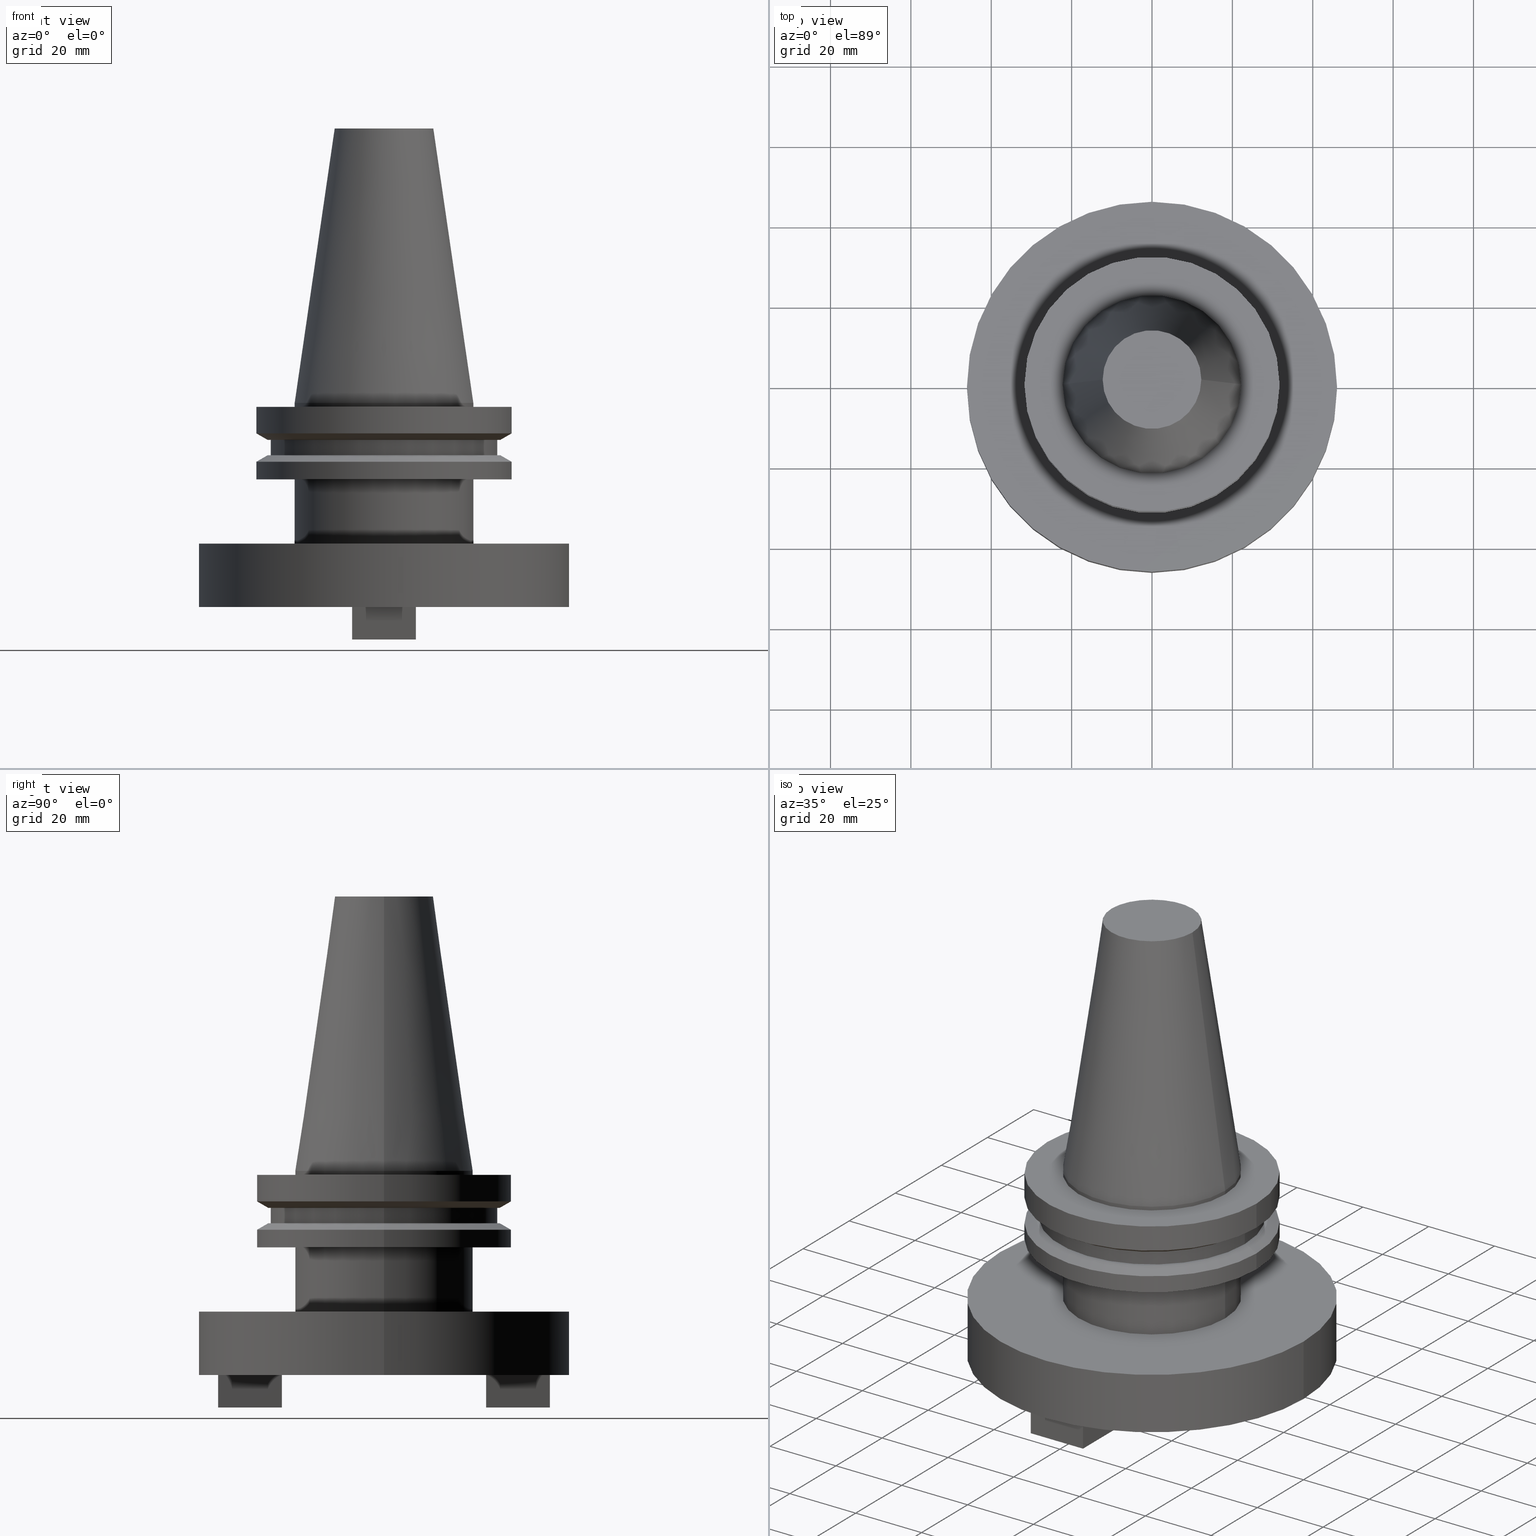
[diagram: canonical four-view strip — front | top / right | iso, engineering-drawing reading convention]
A machine part, canonical four-view strip (front | top / right | iso — engineering-drawing reading convention). The complete STEP part file that produces these views, byte-faithful:
ISO-10303-21;
HEADER;
FILE_DESCRIPTION (( 'STEP AP203' ),
    '1' );
FILE_NAME ('BCV40-SMC1_500-2.STEP',
    '2022-02-25T14:58:45',
    ( '' ),
    ( '' ),
    'SwSTEP 2.0',
    'SolidWorks 2021',
    '' );
FILE_SCHEMA (( 'CONFIG_CONTROL_DESIGN' ));
ENDSEC;

DATA;
#1 = CARTESIAN_POINT ( 'NONE',  ( 7.937499999999989342, -41.27750000000001052, -58.88000000000000256 ) ) ;
#2 = ORIENTED_EDGE ( 'NONE', *, *, #188, .T. ) ;
#3 = PLANE ( 'NONE',  #231 ) ;
#4 = VECTOR ( 'NONE', #994, 1000.000000000000000 ) ;
#5 = AXIS2_PLACEMENT_3D ( 'NONE', #965, #886, #563 ) ;
#6 = PLANE ( 'NONE',  #944 ) ;
#7 = VERTEX_POINT ( 'NONE', #62 ) ;
#8 = CIRCLE ( 'NONE', #23, 28.97919780457007732 ) ;
#9 = CARTESIAN_POINT ( 'NONE',  ( 28.17999999999999972, 0.000000000000000000, -13.05499999999999794 ) ) ;
#10 = EDGE_CURVE ( 'NONE', #1075, #718, #675, .T. ) ;
#11 = DIRECTION ( 'NONE',  ( -0.000000000000000000, -0.000000000000000000, 1.000000000000000000 ) ) ;
#12 = ORIENTED_EDGE ( 'NONE', *, *, #673, .T. ) ;
#13 = CARTESIAN_POINT ( 'NONE',  ( 0.000000000000000000, 0.000000000000000000, -35.04999999999999716 ) ) ;
#14 = DIRECTION ( 'NONE',  ( 1.000000000000000000, 0.000000000000000000, 0.000000000000000000 ) ) ;
#15 = VERTEX_POINT ( 'NONE', #758 ) ;
#16 = EDGE_CURVE ( 'NONE', #633, #242, #418, .T. ) ;
#17 = FACE_OUTER_BOUND ( 'NONE', #280, .T. ) ;
#18 = LINE ( 'NONE', #361, #853 ) ;
#19 = AXIS2_PLACEMENT_3D ( 'NONE', #406, #1006, #248 ) ;
#20 = LINE ( 'NONE', #475, #653 ) ;
#21 = ORIENTED_EDGE ( 'NONE', *, *, #1036, .F. ) ;
#22 = VECTOR ( 'NONE', #241, 1000.000000000000000 ) ;
#23 = AXIS2_PLACEMENT_3D ( 'NONE', #274, #1044, #293 ) ;
#24 = PLANE ( 'NONE',  #5 ) ;
#25 = ADVANCED_FACE ( 'NONE', ( #1052 ), #210, .T. ) ;
#26 = CARTESIAN_POINT ( 'NONE',  ( -7.937499999999996447, -25.40249999999999986, -58.88000000000000256 ) ) ;
#27 = EDGE_LOOP ( 'NONE', ( #504, #825 ) ) ;
#28 = ORIENTED_EDGE ( 'NONE', *, *, #10, .T. ) ;
#29 = CARTESIAN_POINT ( 'NONE',  ( -7.937499999999996447, 41.27749999999999631, -50.79999999999999716 ) ) ;
#30 = DIRECTION ( 'NONE',  ( 1.000000000000000000, 0.000000000000000000, 0.000000000000000000 ) ) ;
#31 = CARTESIAN_POINT ( 'NONE',  ( 0.000000000000000000, 0.000000000000000000, 0.000000000000000000 ) ) ;
#32 = ORIENTED_EDGE ( 'NONE', *, *, #390, .F. ) ;
#33 = ORIENTED_EDGE ( 'NONE', *, *, #411, .T. ) ;
#34 = CARTESIAN_POINT ( 'NONE',  ( 0.000000000000000000, 31.75000000000000000, -0.9999999999999995559 ) ) ;
#35 = CARTESIAN_POINT ( 'NONE',  ( 7.937500000000003553, 41.27749999999999631, -50.79999999999999716 ) ) ;
#36 = EDGE_CURVE ( 'NONE', #117, #510, #785, .T. ) ;
#37 = CARTESIAN_POINT ( 'NONE',  ( 0.000000000000000000, 0.000000000000000000, -19.04999999999999716 ) ) ;
#38 = VECTOR ( 'NONE', #890, 999.9999999999998863 ) ;
#39 = VERTEX_POINT ( 'NONE', #920 ) ;
#40 = VECTOR ( 'NONE', #408, 1000.000000000000000 ) ;
#41 = CYLINDRICAL_SURFACE ( 'NONE', #283, 22.22500000000000142 ) ;
#42 = CARTESIAN_POINT ( 'NONE',  ( 7.937500000000003553, 25.40249999999999986, -58.88000000000000256 ) ) ;
#43 = DIRECTION ( 'NONE',  ( 1.000000000000000000, 0.000000000000000000, 0.000000000000000000 ) ) ;
#44 = CC_DESIGN_DATE_AND_TIME_ASSIGNMENT ( #407, #569, ( #909 ) ) ;
#45 = FACE_OUTER_BOUND ( 'NONE', #1060, .T. ) ;
#46 = ORIENTED_EDGE ( 'NONE', *, *, #66, .F. ) ;
#47 = CARTESIAN_POINT ( 'NONE',  ( 0.000000000000000000, 0.000000000000000000, -1.000000000000000888 ) ) ;
#48 = DIRECTION ( 'NONE',  ( -0.000000000000000000, -0.000000000000000000, 1.000000000000000000 ) ) ;
#49 = EDGE_LOOP ( 'NONE', ( #180, #446, #369, #769 ) ) ;
#50 = CARTESIAN_POINT ( 'NONE',  ( -7.937499999999996447, -25.40249999999999986, -58.88000000000000256 ) ) ;
#51 = LINE ( 'NONE', #635, #854 ) ;
#52 = CARTESIAN_POINT ( 'NONE',  ( 0.000000000000000000, 0.000000000000000000, -58.88000000000000256 ) ) ;
#53 = EDGE_LOOP ( 'NONE', ( #261, #746, #1071, #331 ) ) ;
#54 = EDGE_CURVE ( 'NONE', #985, #870, #834, .T. ) ;
#55 = CIRCLE ( 'NONE', #72, 46.04999999999999716 ) ;
#56 = DIRECTION ( 'NONE',  ( -1.000000000000000000, 0.000000000000000000, 0.000000000000000000 ) ) ;
#57 = EDGE_CURVE ( 'NONE', #481, #741, #508, .T. ) ;
#58 = PERSON_AND_ORGANIZATION_ROLE ( 'design_supplier' ) ;
#59 = LINE ( 'NONE', #1000, #22 ) ;
#60 = VERTEX_POINT ( 'NONE', #1003 ) ;
#61 = FACE_OUTER_BOUND ( 'NONE', #324, .T. ) ;
#62 = CARTESIAN_POINT ( 'NONE',  ( -46.04999999999999716, 5.639498510073560988E-15, -35.04999999999999716 ) ) ;
#63 = EDGE_LOOP ( 'NONE', ( #33, #1066, #468, #698 ) ) ;
#64 = CARTESIAN_POINT ( 'NONE',  ( 7.937500000000003553, 41.27749999999999631, -50.79999999999999716 ) ) ;
#65 = DIRECTION ( 'NONE',  ( -0.000000000000000000, -0.000000000000000000, 1.000000000000000000 ) ) ;
#66 = EDGE_CURVE ( 'NONE', #850, #199, #574, .T. ) ;
#67 = FACE_OUTER_BOUND ( 'NONE', #79, .T. ) ;
#68 = ORIENTED_EDGE ( 'NONE', *, *, #256, .F. ) ;
#69 = ADVANCED_FACE ( 'NONE', ( #315 ), #506, .T. ) ;
#70 = VECTOR ( 'NONE', #585, 1000.000000000000000 ) ;
#71 = FACE_OUTER_BOUND ( 'NONE', #702, .T. ) ;
#72 = AXIS2_PLACEMENT_3D ( 'NONE', #127, #813, #478 ) ;
#73 = LINE ( 'NONE', #562, #86 ) ;
#74 = CARTESIAN_POINT ( 'NONE',  ( 7.937500000000003553, 25.40249999999999986, -50.79999999999999716 ) ) ;
#75 = ORIENTED_EDGE ( 'NONE', *, *, #16, .T. ) ;
#76 = LINE ( 'NONE', #663, #282 ) ;
#77 = EDGE_LOOP ( 'NONE', ( #270, #643, #1001, #154 ) ) ;
#78 = FACE_OUTER_BOUND ( 'NONE', #123, .T. ) ;
#79 = EDGE_LOOP ( 'NONE', ( #189, #129, #1047, #670 ) ) ;
#80 = EDGE_CURVE ( 'NONE', #60, #39, #830, .T. ) ;
#81 = DIRECTION ( 'NONE',  ( 1.000000000000000000, 0.000000000000000000, 0.000000000000000000 ) ) ;
#82 = CARTESIAN_POINT ( 'NONE',  ( 0.000000000000000000, 0.000000000000000000, 68.25000000000000000 ) ) ;
#83 = PRODUCT ( 'BCV40-SMC1_500-2', 'BCV40-SMC1_500-2', '', ( #949 ) ) ;
#84 = CARTESIAN_POINT ( 'NONE',  ( -8.729999999999998650, 1.069116655655639177E-15, 0.000000000000000000 ) ) ;
#85 = EDGE_LOOP ( 'NONE', ( #450, #680 ) ) ;
#86 = VECTOR ( 'NONE', #591, 1000.000000000000000 ) ;
#87 = DIRECTION ( 'NONE',  ( -1.000000000000000000, 0.000000000000000000, 0.000000000000000000 ) ) ;
#88 = EDGE_CURVE ( 'NONE', #525, #199, #763, .T. ) ;
#89 = CIRCLE ( 'NONE', #686, 28.97919780457008088 ) ;
#90 = EDGE_CURVE ( 'NONE', #622, #376, #678, .T. ) ;
#91 = AXIS2_PLACEMENT_3D ( 'NONE', #692, #529, #838 ) ;
#92 = DIRECTION ( 'NONE',  ( 0.000000000000000000, -0.000000000000000000, 1.000000000000000000 ) ) ;
#93 = ORIENTED_EDGE ( 'NONE', *, *, #277, .T. ) ;
#94 = CARTESIAN_POINT ( 'NONE',  ( 0.000000000000000000, 0.000000000000000000, -13.05499999999999794 ) ) ;
#95 = CARTESIAN_POINT ( 'NONE',  ( 31.75000000000000000, 0.000000000000000000, 68.25000000000000000 ) ) ;
#96 = DIRECTION ( 'NONE',  ( 1.000000000000000000, 0.000000000000000000, 0.000000000000000000 ) ) ;
#97 = ORIENTED_EDGE ( 'NONE', *, *, #88, .T. ) ;
#98 = LINE ( 'NONE', #26, #927 ) ;
#99 = CARTESIAN_POINT ( 'NONE',  ( 7.937499999999989342, -25.40249999999999986, -50.79999999999999716 ) ) ;
#100 = PLANE ( 'NONE',  #476 ) ;
#101 = EDGE_CURVE ( 'NONE', #15, #974, #73, .T. ) ;
#102 = EDGE_LOOP ( 'NONE', ( #1012, #251, #535, #617 ) ) ;
#103 = ORIENTED_EDGE ( 'NONE', *, *, #1038, .F. ) ;
#104 = DIRECTION ( 'NONE',  ( -0.000000000000000000, -0.000000000000000000, 1.000000000000000000 ) ) ;
#105 = DIRECTION ( 'NONE',  ( 1.000000000000000000, 0.000000000000000000, 0.000000000000000000 ) ) ;
#106 = ORIENTED_EDGE ( 'NONE', *, *, #182, .F. ) ;
#107 = VECTOR ( 'NONE', #623, 1000.000000000000000 ) ;
#108 = ORIENTED_EDGE ( 'NONE', *, *, #796, .F. ) ;
#109 = APPROVAL_PERSON_ORGANIZATION ( #908, #1054, #309 ) ;
#110 = ORIENTED_EDGE ( 'NONE', *, *, #852, .T. ) ;
#111 = DIRECTION ( 'NONE',  ( 0.000000000000000000, 0.000000000000000000, -1.000000000000000000 ) ) ;
#112 = DIRECTION ( 'NONE',  ( -0.000000000000000000, -0.000000000000000000, 1.000000000000000000 ) ) ;
#113 = ORIENTED_EDGE ( 'NONE', *, *, #392, .T. ) ;
#114 = ORIENTED_EDGE ( 'NONE', *, *, #399, .T. ) ;
#115 = DIRECTION ( 'NONE',  ( 1.000000000000000000, 0.000000000000000000, 0.000000000000000000 ) ) ;
#116 = FACE_BOUND ( 'NONE', #639, .T. ) ;
#117 = VERTEX_POINT ( 'NONE', #926 ) ;
#118 = ORIENTED_EDGE ( 'NONE', *, *, #651, .F. ) ;
#119 = LINE ( 'NONE', #1055, #382 ) ;
#120 = ADVANCED_FACE ( 'NONE', ( #581 ), #502, .T. ) ;
#121 = EDGE_CURVE ( 'NONE', #229, #1046, #401, .T. ) ;
#122 = LINE ( 'NONE', #807, #891 ) ;
#123 = EDGE_LOOP ( 'NONE', ( #981, #368, #397, #532 ) ) ;
#124 = VERTEX_POINT ( 'NONE', #713 ) ;
#125 = ORIENTED_EDGE ( 'NONE', *, *, #495, .T. ) ;
#126 = AXIS2_PLACEMENT_3D ( 'NONE', #733, #147, #755 ) ;
#127 = CARTESIAN_POINT ( 'NONE',  ( 0.000000000000000000, 0.000000000000000000, -35.04999999999999716 ) ) ;
#128 = CARTESIAN_POINT ( 'NONE',  ( 7.937499999999989342, -25.40249999999999986, -58.88000000000000256 ) ) ;
#129 = ORIENTED_EDGE ( 'NONE', *, *, #656, .F. ) ;
#130 = ORIENTED_EDGE ( 'NONE', *, *, #724, .T. ) ;
#131 = PLANE ( 'NONE',  #874 ) ;
#132 = DIRECTION ( 'NONE',  ( 1.000000000000000000, 0.000000000000000000, 0.000000000000000000 ) ) ;
#133 = APPROVAL_STATUS ( 'not_yet_approved' ) ;
#134 = ADVANCED_FACE ( 'NONE', ( #346 ), #338, .T. ) ;
#135 = CARTESIAN_POINT ( 'NONE',  ( -28.17999999999999972, 3.451054679997241634E-15, -9.204999999999991189 ) ) ;
#136 = ORIENTED_EDGE ( 'NONE', *, *, #233, .F. ) ;
#137 = FACE_OUTER_BOUND ( 'NONE', #63, .T. ) ;
#138 = APPROVAL_ROLE ( '' ) ;
#139 = VECTOR ( 'NONE', #240, 1000.000000000000000 ) ;
#140 = CARTESIAN_POINT ( 'NONE',  ( 22.22500000000000142, 2.721777511104992849E-15, 0.000000000000000000 ) ) ;
#141 = EDGE_LOOP ( 'NONE', ( #344, #318, #275, #1040 ) ) ;
#142 = AXIS2_PLACEMENT_3D ( 'NONE', #580, #681, #833 ) ;
#143 = VECTOR ( 'NONE', #1013, 1000.000000000000000 ) ;
#144 = APPLICATION_CONTEXT ( 'configuration controlled 3d designs of mechanical parts and assemblies' ) ;
#145 = CYLINDRICAL_SURFACE ( 'NONE', #19, 8.729999999999998650 ) ;
#146 = PERSON_AND_ORGANIZATION ( #329, #598 ) ;
#147 = DIRECTION ( 'NONE',  ( -1.000000000000000000, 0.000000000000000000, -0.000000000000000000 ) ) ;
#148 = ORIENTED_EDGE ( 'NONE', *, *, #460, .T. ) ;
#149 = DIRECTION ( 'NONE',  ( -0.000000000000000000, -0.000000000000000000, 1.000000000000000000 ) ) ;
#150 = EDGE_CURVE ( 'NONE', #887, #7, #938, .T. ) ;
#151 = DIRECTION ( 'NONE',  ( -0.000000000000000000, -0.000000000000000000, 1.000000000000000000 ) ) ;
#152 = DATE_TIME_ROLE ( 'creation_date' ) ;
#153 = PLANE ( 'NONE',  #126 ) ;
#154 = ORIENTED_EDGE ( 'NONE', *, *, #348, .T. ) ;
#155 = DIRECTION ( 'NONE',  ( 1.000000000000000000, 0.000000000000000000, 0.000000000000000000 ) ) ;
#156 = CC_DESIGN_PERSON_AND_ORGANIZATION_ASSIGNMENT ( #820, #1058, ( #688 ) ) ;
#157 = CARTESIAN_POINT ( 'NONE',  ( 0.000000000000000000, 0.000000000000000000, -1.000000000000000888 ) ) ;
#158 = ORIENTED_EDGE ( 'NONE', *, *, #390, .T. ) ;
#159 = VECTOR ( 'NONE', #860, 1000.000000000000000 ) ;
#160 = AXIS2_PLACEMENT_3D ( 'NONE', #489, #817, #991 ) ;
#161 = DIRECTION ( 'NONE',  ( -0.000000000000000000, -0.000000000000000000, 1.000000000000000000 ) ) ;
#162 = AXIS2_PLACEMENT_3D ( 'NONE', #464, #377, #884 ) ;
#163 = LOCAL_TIME ( 8, 58, 45.00000000000000000, #642 ) ;
#164 = CARTESIAN_POINT ( 'NONE',  ( 0.000000000000000000, 0.000000000000000000, 68.25000000000000000 ) ) ;
#165 = MANIFOLD_SOLID_BREP ( 'SQ', #683 ) ;
#166 = PLANE ( 'NONE',  #722 ) ;
#167 = ORIENTED_EDGE ( 'NONE', *, *, #1015, .T. ) ;
#168 = LINE ( 'NONE', #788, #597 ) ;
#169 = CARTESIAN_POINT ( 'NONE',  ( 0.000000000000000000, 0.000000000000000000, -1.000000000000000888 ) ) ;
#170 = FACE_BOUND ( 'NONE', #102, .T. ) ;
#171 = EDGE_LOOP ( 'NONE', ( #606, #187, #279, #1024 ) ) ;
#172 = EDGE_CURVE ( 'NONE', #1034, #1046, #273, .T. ) ;
#173 = CARTESIAN_POINT ( 'NONE',  ( 0.000000000000000000, 0.000000000000000000, -50.79999999999999716 ) ) ;
#174 = LINE ( 'NONE', #269, #438 ) ;
#175 = VERTEX_POINT ( 'NONE', #777 ) ;
#176 = CC_DESIGN_DATE_AND_TIME_ASSIGNMENT ( #486, #152, ( #829 ) ) ;
#177 = VECTOR ( 'NONE', #473, 1000.000000000000000 ) ;
#178 = DIRECTION ( 'NONE',  ( 1.000000000000000000, 0.000000000000000000, 0.000000000000000000 ) ) ;
#179 = FACE_OUTER_BOUND ( 'NONE', #567, .T. ) ;
#180 = ORIENTED_EDGE ( 'NONE', *, *, #912, .F. ) ;
#181 = DIRECTION ( 'NONE',  ( 1.000000000000000000, 0.000000000000000000, 0.000000000000000000 ) ) ;
#182 = EDGE_CURVE ( 'NONE', #966, #835, #864, .T. ) ;
#183 = VERTEX_POINT ( 'NONE', #782 ) ;
#184 = PLANE ( 'NONE',  #1025 ) ;
#185 = CARTESIAN_POINT ( 'NONE',  ( 0.000000000000000000, 0.000000000000000000, -35.04999999999999716 ) ) ;
#186 = CARTESIAN_POINT ( 'NONE',  ( 0.000000000000000000, 0.000000000000000000, -7.605276606597335842 ) ) ;
#187 = ORIENTED_EDGE ( 'NONE', *, *, #631, .T. ) ;
#188 = EDGE_CURVE ( 'NONE', #117, #1079, #18, .T. ) ;
#189 = ORIENTED_EDGE ( 'NONE', *, *, #587, .F. ) ;
#190 = CARTESIAN_POINT ( 'NONE',  ( 0.000000000000000000, 0.000000000000000000, -13.05499999999999794 ) ) ;
#191 = CONICAL_SURFACE ( 'NONE', #576, 31.75000000000000000, 1.047197551196597853 ) ;
#192 = DIRECTION ( 'NONE',  ( -0.000000000000000000, -0.000000000000000000, 1.000000000000000000 ) ) ;
#193 = CIRCLE ( 'NONE', #955, 31.75000000000000000 ) ;
#194 = EDGE_CURVE ( 'NONE', #7, #972, #925, .T. ) ;
#195 = ORIENTED_EDGE ( 'NONE', *, *, #1032, .F. ) ;
#196 = EDGE_CURVE ( 'NONE', #458, #39, #719, .T. ) ;
#197 = DIRECTION ( 'NONE',  ( -0.000000000000000000, -0.000000000000000000, 1.000000000000000000 ) ) ;
#198 = ORIENTED_EDGE ( 'NONE', *, *, #440, .T. ) ;
#199 = VERTEX_POINT ( 'NONE', #221 ) ;
#200 = EDGE_CURVE ( 'NONE', #633, #15, #814, .T. ) ;
#201 = CARTESIAN_POINT ( 'NONE',  ( 0.000000000000000000, 0.000000000000000000, -35.04999999999999716 ) ) ;
#202 = CARTESIAN_POINT ( 'NONE',  ( 0.000000000000000000, 0.000000000000000000, -19.04999999999999716 ) ) ;
#203 = DIRECTION ( 'NONE',  ( 1.000000000000000000, 0.000000000000000000, 0.000000000000000000 ) ) ;
#204 = ORIENTED_EDGE ( 'NONE', *, *, #230, .F. ) ;
#205 = ORIENTED_EDGE ( 'NONE', *, *, #357, .T. ) ;
#206 = ORIENTED_EDGE ( 'NONE', *, *, #264, .F. ) ;
#207 = DIRECTION ( 'NONE',  ( -0.000000000000000000, 1.000000000000000000, -0.000000000000000000 ) ) ;
#208 = ADVANCED_FACE ( 'NONE', ( #795 ), #218, .F. ) ;
#209 = APPROVAL_DATE_TIME ( #490, #272 ) ;
#210 = CONICAL_SURFACE ( 'NONE', #626, 22.22500000000000142, 0.1448138465474119174 ) ;
#211 = EDGE_LOOP ( 'NONE', ( #903, #258, #822, #425 ) ) ;
#212 = VECTOR ( 'NONE', #496, 1000.000000000000000 ) ;
#213 = CARTESIAN_POINT ( 'NONE',  ( -7.937499999999996447, 41.27749999999999631, -58.88000000000000256 ) ) ;
#214 = EDGE_LOOP ( 'NONE', ( #415, #1051, #1009, #638 ) ) ;
#215 = CIRCLE ( 'NONE', #162, 22.22500000000000142 ) ;
#216 = AXIS2_PLACEMENT_3D ( 'NONE', #710, #728, #723 ) ;
#217 = CARTESIAN_POINT ( 'NONE',  ( 0.000000000000000000, 31.74999999999999289, -19.04999999999999716 ) ) ;
#218 = PLANE ( 'NONE',  #378 ) ;
#219 = ADVANCED_FACE ( 'NONE', ( #800 ), #880, .T. ) ;
#220 = ORIENTED_EDGE ( 'NONE', *, *, #460, .F. ) ;
#221 = CARTESIAN_POINT ( 'NONE',  ( 28.17999999999999972, 0.000000000000000000, -9.204999999999991189 ) ) ;
#222 = PRODUCT_RELATED_PRODUCT_CATEGORY ( 'detail', '', ( #83 ) ) ;
#223 = DIRECTION ( 'NONE',  ( -0.8660254037844387076, 0.000000000000000000, -0.4999999999999998890 ) ) ;
#224 = ORIENTED_EDGE ( 'NONE', *, *, #892, .T. ) ;
#225 = DIRECTION ( 'NONE',  ( 1.000000000000000000, 0.000000000000000000, 0.000000000000000000 ) ) ;
#226 = PERSON_AND_ORGANIZATION_ROLE ( 'classification_officer' ) ;
#227 = AXIS2_PLACEMENT_3D ( 'NONE', #429, #151, #586 ) ;
#228 = CARTESIAN_POINT ( 'NONE',  ( 7.937499999999989342, -25.40249999999999986, -58.88000000000000256 ) ) ;
#229 = VERTEX_POINT ( 'NONE', #806 ) ;
#230 = EDGE_CURVE ( 'NONE', #1089, #124, #556, .T. ) ;
#231 = AXIS2_PLACEMENT_3D ( 'NONE', #217, #371, #961 ) ;
#232 = DIRECTION ( 'NONE',  ( 0.000000000000000000, 1.000000000000000000, 0.000000000000000000 ) ) ;
#233 = EDGE_CURVE ( 'NONE', #15, #622, #479, .T. ) ;
#234 = DIRECTION ( 'NONE',  ( -0.000000000000000000, -0.000000000000000000, 1.000000000000000000 ) ) ;
#235 = DIRECTION ( 'NONE',  ( -0.000000000000000000, 1.000000000000000000, -0.000000000000000000 ) ) ;
#236 = CALENDAR_DATE ( 2022, 25, 2 ) ;
#237 = ORIENTED_EDGE ( 'NONE', *, *, #522, .T. ) ;
#238 = EDGE_CURVE ( 'NONE', #39, #458, #803, .T. ) ;
#239 = LINE ( 'NONE', #1088, #557 ) ;
#240 = DIRECTION ( 'NONE',  ( 0.8660254037844389297, 0.000000000000000000, 0.4999999999999995004 ) ) ;
#241 = DIRECTION ( 'NONE',  ( 0.000000000000000000, -1.000000000000000000, 0.000000000000000000 ) ) ;
#242 = VERTEX_POINT ( 'NONE', #35 ) ;
#243 = FACE_OUTER_BOUND ( 'NONE', #141, .T. ) ;
#244 = DIRECTION ( 'NONE',  ( 1.000000000000000000, 0.000000000000000000, 0.000000000000000000 ) ) ;
#245 = CARTESIAN_POINT ( 'NONE',  ( -7.937499999999996447, -25.40250000000000696, -50.79999999999999716 ) ) ;
#246 = EDGE_LOOP ( 'NONE', ( #326, #167 ) ) ;
#247 = CIRCLE ( 'NONE', #873, 8.729999999999998650 ) ;
#248 = DIRECTION ( 'NONE',  ( 1.000000000000000000, 0.000000000000000000, 0.000000000000000000 ) ) ;
#249 = VECTOR ( 'NONE', #548, 1000.000000000000000 ) ;
#250 = AXIS2_PLACEMENT_3D ( 'NONE', #697, #1018, #14 ) ;
#251 = ORIENTED_EDGE ( 'NONE', *, *, #852, .F. ) ;
#252 = ADVANCED_FACE ( 'NONE', ( #979 ), #461, .T. ) ;
#253 = PLANE ( 'NONE',  #474 ) ;
#254 = ORIENTED_EDGE ( 'NONE', *, *, #866, .T. ) ;
#255 = DIRECTION ( 'NONE',  ( -0.000000000000000000, -0.000000000000000000, 1.000000000000000000 ) ) ;
#256 = EDGE_CURVE ( 'NONE', #1089, #730, #360, .T. ) ;
#257 = LINE ( 'NONE', #424, #668 ) ;
#258 = ORIENTED_EDGE ( 'NONE', *, *, #1032, .T. ) ;
#259 = CYLINDRICAL_SURFACE ( 'NONE', #720, 46.04999999999999716 ) ;
#260 = FACE_OUTER_BOUND ( 'NONE', #1081, .T. ) ;
#261 = ORIENTED_EDGE ( 'NONE', *, *, #150, .F. ) ;
#262 = EDGE_CURVE ( 'NONE', #894, #741, #51, .T. ) ;
#263 = CARTESIAN_POINT ( 'NONE',  ( 0.000000000000000000, 0.000000000000000000, 0.000000000000000000 ) ) ;
#264 = EDGE_CURVE ( 'NONE', #1034, #521, #975, .T. ) ;
#265 = AXIS2_PLACEMENT_3D ( 'NONE', #485, #717, #30 ) ;
#266 = CARTESIAN_POINT ( 'NONE',  ( 0.000000000000000000, 0.000000000000000000, -14.65472339340266572 ) ) ;
#267 = VECTOR ( 'NONE', #498, 1000.000000000000000 ) ;
#268 = CIRCLE ( 'NONE', #384, 22.22500000000000142 ) ;
#269 = CARTESIAN_POINT ( 'NONE',  ( 31.75000000000000000, 0.000000000000000000, 68.25000000000000000 ) ) ;
#270 = ORIENTED_EDGE ( 'NONE', *, *, #534, .T. ) ;
#271 = LINE ( 'NONE', #614, #143 ) ;
#272 = APPROVAL ( #655, 'UNSPECIFIED' ) ;
#273 = LINE ( 'NONE', #95, #300 ) ;
#274 = CARTESIAN_POINT ( 'NONE',  ( 0.000000000000000000, 0.000000000000000000, -9.205000000000005400 ) ) ;
#275 = ORIENTED_EDGE ( 'NONE', *, *, #1045, .F. ) ;
#276 = CARTESIAN_POINT ( 'NONE',  ( -31.74999999999999289, 3.888253587292845687E-15, -19.04999999999999716 ) ) ;
#277 = EDGE_CURVE ( 'NONE', #865, #1030, #513, .T. ) ;
#278 = LINE ( 'NONE', #552, #286 ) ;
#279 = ORIENTED_EDGE ( 'NONE', *, *, #620, .F. ) ;
#280 = EDGE_LOOP ( 'NONE', ( #832, #685, #480, #391 ) ) ;
#281 = DIRECTION ( 'NONE',  ( -0.000000000000000000, -0.000000000000000000, 1.000000000000000000 ) ) ;
#282 = VECTOR ( 'NONE', #828, 1000.000000000000000 ) ;
#283 = AXIS2_PLACEMENT_3D ( 'NONE', #976, #398, #1048 ) ;
#284 = ADVANCED_FACE ( 'NONE', ( #61 ), #145, .F. ) ;
#285 = VECTOR ( 'NONE', #223, 1000.000000000000000 ) ;
#286 = VECTOR ( 'NONE', #624, 1000.000000000000000 ) ;
#287 = ADVANCED_FACE ( 'NONE', ( #590 ), #422, .F. ) ;
#288 = ORIENTED_EDGE ( 'NONE', *, *, #796, .T. ) ;
#289 = CARTESIAN_POINT ( 'NONE',  ( -31.75000000000000000, 3.888253587292846476E-15, 68.25000000000000000 ) ) ;
#290 = DIRECTION ( 'NONE',  ( -0.000000000000000000, -0.000000000000000000, 1.000000000000000000 ) ) ;
#291 = VERTEX_POINT ( 'NONE', #919 ) ;
#292 = DIRECTION ( 'NONE',  ( -1.000000000000000000, 0.000000000000000000, -0.000000000000000000 ) ) ;
#293 = DIRECTION ( 'NONE',  ( 1.000000000000000000, 0.000000000000000000, 0.000000000000000000 ) ) ;
#294 = DIRECTION ( 'NONE',  ( -0.000000000000000000, -0.000000000000000000, 1.000000000000000000 ) ) ;
#295 = EDGE_LOOP ( 'NONE', ( #885, #355 ) ) ;
#296 = FACE_OUTER_BOUND ( 'NONE', #77, .T. ) ;
#297 = EDGE_CURVE ( 'NONE', #741, #481, #905, .T. ) ;
#298 = DIRECTION ( 'NONE',  ( 1.000000000000000000, 0.000000000000000000, 0.000000000000000000 ) ) ;
#299 = COORDINATED_UNIVERSAL_TIME_OFFSET ( 6, 0, .BEHIND. ) ;
#300 = VECTOR ( 'NONE', #444, 1000.000000000000000 ) ;
#301 = AXIS2_PLACEMENT_3D ( 'NONE', #13, #533, #689 ) ;
#302 = FACE_OUTER_BOUND ( 'NONE', #420, .T. ) ;
#303 = AXIS2_PLACEMENT_3D ( 'NONE', #516, #520, #843 ) ;
#304 = FACE_OUTER_BOUND ( 'NONE', #349, .T. ) ;
#305 = ADVANCED_FACE ( 'NONE', ( #71 ), #332, .T. ) ;
#306 = LINE ( 'NONE', #396, #40 ) ;
#307 = EDGE_LOOP ( 'NONE', ( #433, #939, #572, #693 ) ) ;
#308 = DIRECTION ( 'NONE',  ( 0.8660254037844387076, 1.060575238724906915E-16, -0.4999999999999998890 ) ) ;
#309 = APPROVAL_ROLE ( '' ) ;
#310 = EDGE_CURVE ( 'NONE', #60, #637, #786, .T. ) ;
#311 = CARTESIAN_POINT ( 'NONE',  ( 0.000000000000000000, 0.000000000000000000, 68.25000000000000000 ) ) ;
#312 = ORIENTED_EDGE ( 'NONE', *, *, #1082, .F. ) ;
#313 = PLANE ( 'NONE',  #907 ) ;
#314 = CARTESIAN_POINT ( 'NONE',  ( 0.000000000000000000, 0.000000000000000000, -14.65472339340266572 ) ) ;
#315 = FACE_OUTER_BOUND ( 'NONE', #871, .T. ) ;
#316 = ADVANCED_FACE ( 'NONE', ( #137 ), #659, .T. ) ;
#317 = CARTESIAN_POINT ( 'NONE',  ( 7.937499999999989342, -41.27750000000001052, -58.88000000000000256 ) ) ;
#318 = ORIENTED_EDGE ( 'NONE', *, *, #1082, .T. ) ;
#319 = AXIS2_PLACEMENT_3D ( 'NONE', #1068, #161, #428 ) ;
#320 = ADVANCED_FACE ( 'NONE', ( #1077 ), #674, .T. ) ;
#321 = VECTOR ( 'NONE', #942, 1000.000000000000000 ) ;
#322 = CC_DESIGN_APPROVAL ( #272, ( #688 ) ) ;
#323 = CARTESIAN_POINT ( 'NONE',  ( 0.000000000000000000, 0.000000000000000000, 68.25000000000000000 ) ) ;
#324 = EDGE_LOOP ( 'NONE', ( #220, #537, #792, #960 ) ) ;
#325 = CARTESIAN_POINT ( 'NONE',  ( 7.937500000000003553, 25.40249999999999986, -50.79999999999999716 ) ) ;
#326 = ORIENTED_EDGE ( 'NONE', *, *, #256, .T. ) ;
#327 = CARTESIAN_POINT ( 'NONE',  ( 0.000000000000000000, 0.000000000000000000, 0.000000000000000000 ) ) ;
#328 = CARTESIAN_POINT ( 'NONE',  ( 28.17999999999999972, 0.000000000000000000, 68.25000000000000000 ) ) ;
#329 = PERSON ( 'UNSPECIFIED', 'UNSPECIFIED', 'UNSPECIFIED', ('UNSPECIFIED'), ('UNSPECIFIED'), ('UNSPECIFIED') ) ;
#330 = CARTESIAN_POINT ( 'NONE',  ( 0.000000000000000000, 28.97919780457007732, -9.204999999999996518 ) ) ;
#331 = ORIENTED_EDGE ( 'NONE', *, *, #194, .F. ) ;
#332 = CYLINDRICAL_SURFACE ( 'NONE', #649, 31.75000000000000000 ) ;
#333 = ADVANCED_FACE ( 'NONE', ( #1002 ), #191, .T. ) ;
#334 = ORIENTED_EDGE ( 'NONE', *, *, #691, .F. ) ;
#335 = ADVANCED_FACE ( 'NONE', ( #243 ), #742, .T. ) ;
#336 = DIRECTION ( 'NONE',  ( 1.000000000000000000, 0.000000000000000000, 0.000000000000000000 ) ) ;
#337 = EDGE_LOOP ( 'NONE', ( #206, #935 ) ) ;
#338 = CONICAL_SURFACE ( 'NONE', #611, 31.75000000000000000, 1.047197551196597853 ) ;
#339 = VECTOR ( 'NONE', #452, 1000.000000000000000 ) ;
#340 = DIRECTION ( 'NONE',  ( -0.000000000000000000, -0.000000000000000000, 1.000000000000000000 ) ) ;
#341 = CIRCLE ( 'NONE', #889, 28.97919780457008088 ) ;
#342 = VECTOR ( 'NONE', #192, 1000.000000000000000 ) ;
#343 = LINE ( 'NONE', #84, #321 ) ;
#344 = ORIENTED_EDGE ( 'NONE', *, *, #36, .T. ) ;
#345 = DIRECTION ( 'NONE',  ( 1.000000000000000000, 0.000000000000000000, 0.000000000000000000 ) ) ;
#346 = FACE_OUTER_BOUND ( 'NONE', #811, .T. ) ;
#347 = CARTESIAN_POINT ( 'NONE',  ( -7.937499999999996447, -25.40249999999999986, -58.88000000000000256 ) ) ;
#348 = EDGE_CURVE ( 'NONE', #376, #589, #417, .T. ) ;
#349 = EDGE_LOOP ( 'NONE', ( #205, #364, #756, #75 ) ) ;
#350 = EDGE_CURVE ( 'NONE', #637, #458, #76, .T. ) ;
#351 = APPLICATION_CONTEXT ( 'configuration controlled 3d designs of mechanical parts and assemblies' ) ;
#352 = DIRECTION ( 'NONE',  ( 1.000000000000000000, -0.000000000000000000, -0.000000000000000000 ) ) ;
#353 = PRODUCT_DEFINITION_SHAPE ( 'NONE', 'NONE',  #829 ) ;
#354 = FACE_BOUND ( 'NONE', #547, .T. ) ;
#355 = ORIENTED_EDGE ( 'NONE', *, *, #654, .F. ) ;
#356 = EDGE_CURVE ( 'NONE', #375, #1046, #239, .T. ) ;
#357 = EDGE_CURVE ( 'NONE', #242, #974, #573, .T. ) ;
#358 = AXIS2_PLACEMENT_3D ( 'NONE', #157, #748, #244 ) ;
#359 = DIRECTION ( 'NONE',  ( -0.000000000000000000, -0.000000000000000000, 1.000000000000000000 ) ) ;
#360 = CIRCLE ( 'NONE', #767, 12.27178102086201150 ) ;
#361 = CARTESIAN_POINT ( 'NONE',  ( 22.22500000000000142, 0.000000000000000000, 68.25000000000000000 ) ) ;
#362 = AXIS2_PLACEMENT_3D ( 'NONE', #487, #831, #910 ) ;
#363 = CARTESIAN_POINT ( 'NONE',  ( 31.74999999999999289, 0.000000000000000000, -19.04999999999999716 ) ) ;
#364 = ORIENTED_EDGE ( 'NONE', *, *, #101, .F. ) ;
#365 = CARTESIAN_POINT ( 'NONE',  ( 0.000000000000000000, 0.000000000000000000, 0.000000000000000000 ) ) ;
#366 = DIRECTION ( 'NONE',  ( -0.000000000000000000, -0.000000000000000000, 1.000000000000000000 ) ) ;
#367 = APPLICATION_PROTOCOL_DEFINITION ( 'international standard', 'config_control_design', 1994, #144 ) ;
#368 = ORIENTED_EDGE ( 'NONE', *, *, #350, .T. ) ;
#369 = ORIENTED_EDGE ( 'NONE', *, *, #980, .T. ) ;
#370 = ORIENTED_EDGE ( 'NONE', *, *, #656, .T. ) ;
#371 = DIRECTION ( 'NONE',  ( 0.000000000000000000, -0.000000000000000000, 1.000000000000000000 ) ) ;
#372 = EDGE_CURVE ( 'NONE', #376, #633, #823, .T. ) ;
#373 = DESIGN_CONTEXT ( 'detailed design', #351, 'design' ) ;
#374 =( LENGTH_UNIT ( ) NAMED_UNIT ( * ) SI_UNIT ( .MILLI., .METRE. ) );
#375 = VERTEX_POINT ( 'NONE', #1073 ) ;
#376 = VERTEX_POINT ( 'NONE', #863 ) ;
#377 = DIRECTION ( 'NONE',  ( 0.000000000000000000, 0.000000000000000000, -1.000000000000000000 ) ) ;
#378 = AXIS2_PLACEMENT_3D ( 'NONE', #128, #544, #969 ) ;
#379 = DIRECTION ( 'NONE',  ( -0.000000000000000000, -0.000000000000000000, 1.000000000000000000 ) ) ;
#380 = AXIS2_PLACEMENT_3D ( 'NONE', #202, #149, #501 ) ;
#381 = EDGE_CURVE ( 'NONE', #389, #175, #511, .T. ) ;
#382 = VECTOR ( 'NONE', #897, 1000.000000000000000 ) ;
#383 = DIRECTION ( 'NONE',  ( 1.000000000000000000, 0.000000000000000000, 0.000000000000000000 ) ) ;
#384 = AXIS2_PLACEMENT_3D ( 'NONE', #31, #449, #203 ) ;
#385 = ORIENTED_EDGE ( 'NONE', *, *, #892, .F. ) ;
#386 = VERTEX_POINT ( 'NONE', #528 ) ;
#387 = PLANE ( 'NONE',  #687 ) ;
#388 = CARTESIAN_POINT ( 'NONE',  ( -12.27178102086201150, 0.000000000000000000, 68.25000000000000000 ) ) ;
#389 = VERTEX_POINT ( 'NONE', #781 ) ;
#390 = EDGE_CURVE ( 'NONE', #711, #966, #98, .T. ) ;
#391 = ORIENTED_EDGE ( 'NONE', *, *, #1038, .T. ) ;
#392 = EDGE_CURVE ( 'NONE', #124, #1079, #1022, .T. ) ;
#393 = DIRECTION ( 'NONE',  ( 0.000000000000000000, 0.000000000000000000, -1.000000000000000000 ) ) ;
#394 = DIRECTION ( 'NONE',  ( -0.000000000000000000, -0.000000000000000000, 1.000000000000000000 ) ) ;
#395 = PERSON_AND_ORGANIZATION ( #329, #598 ) ;
#396 = CARTESIAN_POINT ( 'NONE',  ( -31.75000000000000000, 3.888253587292846476E-15, 68.25000000000000000 ) ) ;
#397 = ORIENTED_EDGE ( 'NONE', *, *, #238, .F. ) ;
#398 = DIRECTION ( 'NONE',  ( -0.000000000000000000, -0.000000000000000000, 1.000000000000000000 ) ) ;
#399 = EDGE_CURVE ( 'NONE', #917, #375, #89, .T. ) ;
#400 = CALENDAR_DATE ( 2022, 25, 2 ) ;
#401 = CIRCLE ( 'NONE', #472, 31.75000000000000000 ) ;
#402 = CIRCLE ( 'NONE', #540, 22.22500000000000142 ) ;
#403 = CARTESIAN_POINT ( 'NONE',  ( -31.75000000000000000, 3.888253587292846476E-15, -1.000000000000000888 ) ) ;
#404 = ORIENTED_EDGE ( 'NONE', *, *, #372, .T. ) ;
#405 = VECTOR ( 'NONE', #281, 1000.000000000000000 ) ;
#406 = CARTESIAN_POINT ( 'NONE',  ( 0.000000000000000000, 0.000000000000000000, 0.000000000000000000 ) ) ;
#407 = DATE_AND_TIME ( #810, #1026 ) ;
#408 = DIRECTION ( 'NONE',  ( -0.000000000000000000, -0.000000000000000000, 1.000000000000000000 ) ) ;
#409 = ORIENTED_EDGE ( 'NONE', *, *, #507, .T. ) ;
#410 = CARTESIAN_POINT ( 'NONE',  ( 7.937500000000003553, 41.27749999999999631, -58.88000000000000256 ) ) ;
#411 = EDGE_CURVE ( 'NONE', #525, #922, #596, .T. ) ;
#412 = CARTESIAN_POINT ( 'NONE',  ( 7.937499999999989342, -41.27750000000001052, -50.79999999999999716 ) ) ;
#413 = ADVANCED_FACE ( 'NONE', ( #17 ), #604, .F. ) ;
#414 = CARTESIAN_POINT ( 'NONE',  ( 0.000000000000000000, 0.000000000000000000, -9.205000000000005400 ) ) ;
#415 = ORIENTED_EDGE ( 'NONE', *, *, #631, .F. ) ;
#416 = CARTESIAN_POINT ( 'NONE',  ( -7.937499999999996447, -41.27750000000001052, -50.79999999999999716 ) ) ;
#417 = LINE ( 'NONE', #505, #941 ) ;
#418 = LINE ( 'NONE', #682, #436 ) ;
#419 = APPROVAL_DATE_TIME ( #901, #1087 ) ;
#420 = EDGE_LOOP ( 'NONE', ( #237, #125, #254, #93 ) ) ;
#421 = CIRCLE ( 'NONE', #819, 22.22500000000000142 ) ;
#422 = CYLINDRICAL_SURFACE ( 'NONE', #142, 8.729999999999998650 ) ;
#423 = DIRECTION ( 'NONE',  ( -1.000000000000000000, 0.000000000000000000, 0.000000000000000000 ) ) ;
#424 = CARTESIAN_POINT ( 'NONE',  ( 8.729999999999998650, 0.000000000000000000, 0.000000000000000000 ) ) ;
#425 = ORIENTED_EDGE ( 'NONE', *, *, #196, .F. ) ;
#426 = ADVANCED_FACE ( 'NONE', ( #858 ), #259, .T. ) ;
#427 = DIRECTION ( 'NONE',  ( 1.000000000000000000, 0.000000000000000000, 0.000000000000000000 ) ) ;
#428 = DIRECTION ( 'NONE',  ( 1.000000000000000000, 0.000000000000000000, 0.000000000000000000 ) ) ;
#429 = CARTESIAN_POINT ( 'NONE',  ( 0.000000000000000000, 0.000000000000000000, -19.04999999999999716 ) ) ;
#430 = DIRECTION ( 'NONE',  ( 0.000000000000000000, 1.000000000000000000, 0.000000000000000000 ) ) ;
#431 = ORIENTED_EDGE ( 'NONE', *, *, #904, .F. ) ;
#432 = LINE ( 'NONE', #439, #339 ) ;
#433 = ORIENTED_EDGE ( 'NONE', *, *, #607, .F. ) ;
#434 = PLANE ( 'NONE',  #787 ) ;
#435 = ORIENTED_EDGE ( 'NONE', *, *, #654, .T. ) ;
#436 = VECTOR ( 'NONE', #600, 1000.000000000000000 ) ;
#437 = AXIS2_PLACEMENT_3D ( 'NONE', #937, #81, #712 ) ;
#438 = VECTOR ( 'NONE', #768, 1000.000000000000000 ) ;
#439 = CARTESIAN_POINT ( 'NONE',  ( -7.937499999999996447, -25.40249999999999986, -58.88000000000000256 ) ) ;
#440 = EDGE_CURVE ( 'NONE', #1030, #718, #271, .T. ) ;
#441 = FACE_OUTER_BOUND ( 'NONE', #911, .T. ) ;
#442 = ORIENTED_EDGE ( 'NONE', *, *, #297, .T. ) ;
#443 = DIRECTION ( 'NONE',  ( 1.000000000000000000, 0.000000000000000000, 0.000000000000000000 ) ) ;
#444 = DIRECTION ( 'NONE',  ( -0.000000000000000000, -0.000000000000000000, 1.000000000000000000 ) ) ;
#445 = DIRECTION ( 'NONE',  ( -0.000000000000000000, -0.000000000000000000, 1.000000000000000000 ) ) ;
#446 = ORIENTED_EDGE ( 'NONE', *, *, #724, .F. ) ;
#447 = CARTESIAN_POINT ( 'NONE',  ( 0.000000000000000000, 0.000000000000000000, 0.000000000000000000 ) ) ;
#448 = DIRECTION ( 'NONE',  ( 1.000000000000000000, -0.000000000000000000, -0.000000000000000000 ) ) ;
#449 = DIRECTION ( 'NONE',  ( -0.000000000000000000, -0.000000000000000000, 1.000000000000000000 ) ) ;
#450 = ORIENTED_EDGE ( 'NONE', *, *, #812, .F. ) ;
#451 = AXIS2_PLACEMENT_3D ( 'NONE', #1028, #366, #621 ) ;
#452 = DIRECTION ( 'NONE',  ( -0.000000000000000000, 1.000000000000000000, -0.000000000000000000 ) ) ;
#453 = AXIS2_PLACEMENT_3D ( 'NONE', #447, #104, #940 ) ;
#454 = VECTOR ( 'NONE', #11, 1000.000000000000000 ) ;
#455 = APPROVAL_PERSON_ORGANIZATION ( #732, #272, #138 ) ;
#456 = CARTESIAN_POINT ( 'NONE',  ( 0.000000000000000000, 0.000000000000000000, 0.000000000000000000 ) ) ;
#457 = ORIENTED_EDGE ( 'NONE', *, *, #651, .T. ) ;
#458 = VERTEX_POINT ( 'NONE', #1031 ) ;
#459 = CARTESIAN_POINT ( 'NONE',  ( 0.000000000000000000, 0.000000000000000000, -14.65472339340266572 ) ) ;
#460 = EDGE_CURVE ( 'NONE', #625, #291, #1076, .T. ) ;
#461 = CYLINDRICAL_SURFACE ( 'NONE', #265, 31.75000000000000000 ) ;
#462 = CARTESIAN_POINT ( 'NONE',  ( -7.937499999999996447, -41.27750000000001052, -58.88000000000000256 ) ) ;
#463 = ORIENTED_EDGE ( 'NONE', *, *, #101, .T. ) ;
#464 = CARTESIAN_POINT ( 'NONE',  ( 0.000000000000000000, 0.000000000000000000, -35.04999999999999716 ) ) ;
#465 = CARTESIAN_POINT ( 'NONE',  ( 0.000000000000000000, 0.000000000000000000, 68.25000000000000000 ) ) ;
#466 = EDGE_CURVE ( 'NONE', #175, #389, #247, .T. ) ;
#467 = CARTESIAN_POINT ( 'NONE',  ( 7.937499999999989342, -25.40249999999999986, -58.88000000000000256 ) ) ;
#468 = ORIENTED_EDGE ( 'NONE', *, *, #794, .F. ) ;
#469 = DIRECTION ( 'NONE',  ( -0.000000000000000000, 0.000000000000000000, 1.000000000000000000 ) ) ;
#470 = ORIENTED_EDGE ( 'NONE', *, *, #121, .T. ) ;
#471 = DIRECTION ( 'NONE',  ( -1.000000000000000000, 0.000000000000000000, 0.000000000000000000 ) ) ;
#472 = AXIS2_PLACEMENT_3D ( 'NONE', #842, #690, #773 ) ;
#473 = DIRECTION ( 'NONE',  ( -1.000000000000000000, 0.000000000000000000, 0.000000000000000000 ) ) ;
#474 = AXIS2_PLACEMENT_3D ( 'NONE', #347, #96, #601 ) ;
#475 = CARTESIAN_POINT ( 'NONE',  ( -7.937499999999996447, 25.40249999999999986, -58.88000000000000256 ) ) ;
#476 = AXIS2_PLACEMENT_3D ( 'NONE', #636, #545, #43 ) ;
#477 = ORIENTED_EDGE ( 'NONE', *, *, #466, .F. ) ;
#478 = DIRECTION ( 'NONE',  ( 1.000000000000000000, 0.000000000000000000, 0.000000000000000000 ) ) ;
#479 = LINE ( 'NONE', #42, #177 ) ;
#480 = ORIENTED_EDGE ( 'NONE', *, *, #90, .F. ) ;
#481 = VERTEX_POINT ( 'NONE', #707 ) ;
#482 = CARTESIAN_POINT ( 'NONE',  ( 0.000000000000000000, 0.000000000000000000, -9.204999999999991189 ) ) ;
#483 = EDGE_CURVE ( 'NONE', #783, #972, #1027, .T. ) ;
#484 = CARTESIAN_POINT ( 'NONE',  ( 7.937500000000003553, 41.27749999999999631, -58.88000000000000256 ) ) ;
#485 = CARTESIAN_POINT ( 'NONE',  ( 0.000000000000000000, 0.000000000000000000, 68.25000000000000000 ) ) ;
#486 = DATE_AND_TIME ( #666, #163 ) ;
#487 = CARTESIAN_POINT ( 'NONE',  ( 0.000000000000000000, 0.000000000000000000, -50.79999999999999716 ) ) ;
#488 = ORIENTED_EDGE ( 'NONE', *, *, #310, .F. ) ;
#489 = CARTESIAN_POINT ( 'NONE',  ( 0.000000000000000000, 0.000000000000000000, 68.25000000000000000 ) ) ;
#490 = DATE_AND_TIME ( #236, #840 ) ;
#491 = VECTOR ( 'NONE', #644, 1000.000000000000000 ) ;
#492 = ORIENTED_EDGE ( 'NONE', *, *, #661, .T. ) ;
#493 = AXIS2_PLACEMENT_3D ( 'NONE', #923, #1072, #427 ) ;
#494 = AXIS2_PLACEMENT_3D ( 'NONE', #456, #958, #790 ) ;
#495 = EDGE_CURVE ( 'NONE', #711, #816, #851, .T. ) ;
#496 = DIRECTION ( 'NONE',  ( 0.000000000000000000, -1.000000000000000000, 0.000000000000000000 ) ) ;
#497 = ORIENTED_EDGE ( 'NONE', *, *, #57, .T. ) ;
#498 = DIRECTION ( 'NONE',  ( -1.000000000000000000, 0.000000000000000000, 0.000000000000000000 ) ) ;
#499 = ORIENTED_EDGE ( 'NONE', *, *, #196, .T. ) ;
#500 = DIRECTION ( 'NONE',  ( 0.000000000000000000, -0.000000000000000000, 1.000000000000000000 ) ) ;
#501 = DIRECTION ( 'NONE',  ( 1.000000000000000000, 0.000000000000000000, 0.000000000000000000 ) ) ;
#502 = CYLINDRICAL_SURFACE ( 'NONE', #647, 31.75000000000000000 ) ;
#503 = DIRECTION ( 'NONE',  ( 0.1443082272672999711, 1.767266086135276757E-17, -0.9895327864921755756 ) ) ;
#504 = ORIENTED_EDGE ( 'NONE', *, *, #794, .T. ) ;
#505 = CARTESIAN_POINT ( 'NONE',  ( -7.937499999999996447, 41.27749999999999631, -58.88000000000000256 ) ) ;
#506 = CYLINDRICAL_SURFACE ( 'NONE', #1037, 22.22500000000000142 ) ;
#507 = EDGE_CURVE ( 'NONE', #510, #117, #402, .T. ) ;
#508 = CIRCLE ( 'NONE', #227, 22.22500000000000142 ) ;
#509 = DIRECTION ( 'NONE',  ( 0.000000000000000000, 0.000000000000000000, -1.000000000000000000 ) ) ;
#510 = VERTEX_POINT ( 'NONE', #518 ) ;
#511 = CIRCLE ( 'NONE', #301, 8.729999999999998650 ) ;
#512 = AXIS2_PLACEMENT_3D ( 'NONE', #52, #676, #571 ) ;
#513 = LINE ( 'NONE', #752, #70 ) ;
#514 = DIRECTION ( 'NONE',  ( 1.000000000000000000, 0.000000000000000000, 0.000000000000000000 ) ) ;
#515 = ADVANCED_FACE ( 'NONE', ( #932 ), #954, .T. ) ;
#516 = CARTESIAN_POINT ( 'NONE',  ( 0.000000000000000000, 8.729999999999995097, -35.04999999999999716 ) ) ;
#517 = ORIENTED_EDGE ( 'NONE', *, *, #1045, .T. ) ;
#518 = CARTESIAN_POINT ( 'NONE',  ( -22.22500000000000142, 2.721777511104992849E-15, -1.000000000000000888 ) ) ;
#519 = DIRECTION ( 'NONE',  ( 1.000000000000000000, 0.000000000000000000, 0.000000000000000000 ) ) ;
#520 = DIRECTION ( 'NONE',  ( 0.000000000000000000, 0.000000000000000000, -1.000000000000000000 ) ) ;
#521 = VERTEX_POINT ( 'NONE', #276 ) ;
#522 = EDGE_CURVE ( 'NONE', #1030, #711, #432, .T. ) ;
#523 = DIRECTION ( 'NONE',  ( -0.000000000000000000, -0.000000000000000000, 1.000000000000000000 ) ) ;
#524 = DIRECTION ( 'NONE',  ( -1.000000000000000000, 0.000000000000000000, -0.000000000000000000 ) ) ;
#525 = VERTEX_POINT ( 'NONE', #9 ) ;
#526 = AXIS2_PLACEMENT_3D ( 'NONE', #1049, #1057, #648 ) ;
#527 = AXIS2_PLACEMENT_3D ( 'NONE', #414, #826, #898 ) ;
#528 = CARTESIAN_POINT ( 'NONE',  ( -22.22500000000000142, 2.721777511104992849E-15, -35.04999999999999716 ) ) ;
#529 = DIRECTION ( 'NONE',  ( -0.000000000000000000, -0.000000000000000000, 1.000000000000000000 ) ) ;
#530 = ORIENTED_EDGE ( 'NONE', *, *, #904, .T. ) ;
#531 = DIRECTION ( 'NONE',  ( -0.000000000000000000, -0.000000000000000000, 1.000000000000000000 ) ) ;
#532 = ORIENTED_EDGE ( 'NONE', *, *, #80, .F. ) ;
#533 = DIRECTION ( 'NONE',  ( -0.000000000000000000, -0.000000000000000000, 1.000000000000000000 ) ) ;
#534 = EDGE_CURVE ( 'NONE', #589, #242, #168, .T. ) ;
#535 = ORIENTED_EDGE ( 'NONE', *, *, #357, .F. ) ;
#536 = ADVANCED_FACE ( 'NONE', ( #1017, #766 ), #3, .F. ) ;
#537 = ORIENTED_EDGE ( 'NONE', *, *, #912, .T. ) ;
#538 = VECTOR ( 'NONE', #448, 1000.000000000000000 ) ;
#539 = DIRECTION ( 'NONE',  ( -0.000000000000000000, -0.000000000000000000, 1.000000000000000000 ) ) ;
#540 = AXIS2_PLACEMENT_3D ( 'NONE', #1021, #619, #345 ) ;
#541 = CIRCLE ( 'NONE', #754, 31.75000000000000000 ) ;
#542 = EDGE_LOOP ( 'NONE', ( #877, #435, #97, #46 ) ) ;
#543 = DIRECTION ( 'NONE',  ( 1.000000000000000000, 0.000000000000000000, 0.000000000000000000 ) ) ;
#544 = DIRECTION ( 'NONE',  ( 0.000000000000000000, -1.000000000000000000, -0.000000000000000000 ) ) ;
#545 = DIRECTION ( 'NONE',  ( 0.000000000000000000, -0.000000000000000000, 1.000000000000000000 ) ) ;
#546 = ORIENTED_EDGE ( 'NONE', *, *, #194, .T. ) ;
#547 = EDGE_LOOP ( 'NONE', ( #130, #148 ) ) ;
#548 = DIRECTION ( 'NONE',  ( 0.000000000000000000, -1.000000000000000000, 0.000000000000000000 ) ) ;
#549 = ADVANCED_FACE ( 'NONE', ( #1062 ), #41, .T. ) ;
#550 = EDGE_CURVE ( 'NONE', #386, #894, #215, .T. ) ;
#551 = UNCERTAINTY_MEASURE_WITH_UNIT (LENGTH_MEASURE( 1.000000000000000082E-05 ), #374, 'distance_accuracy_value', 'NONE');
#552 = CARTESIAN_POINT ( 'NONE',  ( -28.17999999999999972, 3.451054679997241634E-15, 68.25000000000000000 ) ) ;
#553 = EDGE_LOOP ( 'NONE', ( #488, #195 ) ) ;
#554 = ORIENTED_EDGE ( 'NONE', *, *, #812, .T. ) ;
#555 = DIRECTION ( 'NONE',  ( 1.000000000000000000, 0.000000000000000000, 0.000000000000000000 ) ) ;
#556 = LINE ( 'NONE', #900, #38 ) ;
#557 = VECTOR ( 'NONE', #308, 1000.000000000000000 ) ;
#558 = CIRCLE ( 'NONE', #630, 28.17999999999999972 ) ;
#559 = SECURITY_CLASSIFICATION_LEVEL ( 'unclassified' ) ;
#560 = ORIENTED_EDGE ( 'NONE', *, *, #661, .F. ) ;
#561 = LOCAL_TIME ( 8, 58, 45.00000000000000000, #995 ) ;
#562 = CARTESIAN_POINT ( 'NONE',  ( 7.937500000000003553, 25.40249999999999986, -58.88000000000000256 ) ) ;
#563 = DIRECTION ( 'NONE',  ( -1.000000000000000000, 0.000000000000000000, 0.000000000000000000 ) ) ;
#564 = DIRECTION ( 'NONE',  ( 1.000000000000000000, 0.000000000000000000, 0.000000000000000000 ) ) ;
#565 = CARTESIAN_POINT ( 'NONE',  ( 0.000000000000000000, 0.000000000000000000, 68.25000000000000000 ) ) ;
#566 = CARTESIAN_POINT ( 'NONE',  ( -31.75000000000000000, 0.000000000000000000, -14.65472339340266572 ) ) ;
#567 = EDGE_LOOP ( 'NONE', ( #457, #546 ) ) ;
#568 = CARTESIAN_POINT ( 'NONE',  ( 7.937500000000003553, 41.27749999999999631, -58.88000000000000256 ) ) ;
#569 = DATE_TIME_ROLE ( 'classification_date' ) ;
#570 = ADVANCED_FACE ( 'NONE', ( #721, #799 ), #387, .F. ) ;
#571 = DIRECTION ( 'NONE',  ( -1.000000000000000000, 0.000000000000000000, 0.000000000000000000 ) ) ;
#572 = ORIENTED_EDGE ( 'NONE', *, *, #620, .T. ) ;
#573 = LINE ( 'NONE', #64, #212 ) ;
#574 = CIRCLE ( 'NONE', #1007, 28.17999999999999972 ) ;
#575 = PERSON_AND_ORGANIZATION_ROLE ( 'creator' ) ;
#576 = AXIS2_PLACEMENT_3D ( 'NONE', #314, #924, #56 ) ;
#577 = CONICAL_SURFACE ( 'NONE', #91, 28.97919780457007732, 1.047197551196598297 ) ;
#578 = ORIENTED_EDGE ( 'NONE', *, *, #550, .F. ) ;
#579 = FACE_OUTER_BOUND ( 'NONE', #729, .T. ) ;
#580 = CARTESIAN_POINT ( 'NONE',  ( 0.000000000000000000, 0.000000000000000000, 0.000000000000000000 ) ) ;
#581 = FACE_OUTER_BOUND ( 'NONE', #171, .T. ) ;
#582 = APPROVAL_DATE_TIME ( #660, #1054 ) ;
#583 = CARTESIAN_POINT ( 'NONE',  ( 7.937499999999989342, -25.40250000000000696, -50.79999999999999716 ) ) ;
#584 = EDGE_LOOP ( 'NONE', ( #442, #497 ) ) ;
#585 = DIRECTION ( 'NONE',  ( -1.000000000000000000, 0.000000000000000000, 0.000000000000000000 ) ) ;
#586 = DIRECTION ( 'NONE',  ( 1.000000000000000000, 0.000000000000000000, 0.000000000000000000 ) ) ;
#587 = EDGE_CURVE ( 'NONE', #386, #481, #641, .T. ) ;
#588 = CYLINDRICAL_SURFACE ( 'NONE', #805, 28.17999999999999972 ) ;
#589 = VERTEX_POINT ( 'NONE', #967 ) ;
#590 = FACE_OUTER_BOUND ( 'NONE', #49, .T. ) ;
#591 = DIRECTION ( 'NONE',  ( -0.000000000000000000, -0.000000000000000000, 1.000000000000000000 ) ) ;
#592 = EDGE_CURVE ( 'NONE', #887, #783, #738, .T. ) ;
#593 = VECTOR ( 'NONE', #957, 1000.000000000000000 ) ;
#594 = CARTESIAN_POINT ( 'NONE',  ( 22.22500000000000142, 0.000000000000000000, -35.04999999999999716 ) ) ;
#595 = EDGE_LOOP ( 'NONE', ( #791, #950 ) ) ;
#596 = CIRCLE ( 'NONE', #629, 28.17999999999999972 ) ;
#597 = VECTOR ( 'NONE', #847, 1000.000000000000000 ) ;
#598 = ORGANIZATION ( 'UNSPECIFIED', 'UNSPECIFIED', '' ) ;
#599 = DIRECTION ( 'NONE',  ( -0.000000000000000000, -0.000000000000000000, 1.000000000000000000 ) ) ;
#600 = DIRECTION ( 'NONE',  ( -0.000000000000000000, -0.000000000000000000, 1.000000000000000000 ) ) ;
#601 = DIRECTION ( 'NONE',  ( 0.000000000000000000, 0.000000000000000000, -1.000000000000000000 ) ) ;
#602 = ORIENTED_EDGE ( 'NONE', *, *, #987, .T. ) ;
#603 = EDGE_CURVE ( 'NONE', #183, #589, #628, .T. ) ;
#604 = PLANE ( 'NONE',  #437 ) ;
#605 = CARTESIAN_POINT ( 'NONE',  ( 7.937500000000003553, 25.40249999999999986, -58.88000000000000256 ) ) ;
#606 = ORIENTED_EDGE ( 'NONE', *, *, #264, .T. ) ;
#607 = EDGE_CURVE ( 'NONE', #375, #917, #341, .T. ) ;
#608 = CARTESIAN_POINT ( 'NONE',  ( 46.04999999999999716, 0.000000000000000000, 0.000000000000000000 ) ) ;
#609 = CARTESIAN_POINT ( 'NONE',  ( 0.000000000000000000, 28.17999999999999972, -13.05499999999999794 ) ) ;
#610 = ORIENTED_EDGE ( 'NONE', *, *, #673, .F. ) ;
#611 = AXIS2_PLACEMENT_3D ( 'NONE', #266, #789, #695 ) ;
#612 = VECTOR ( 'NONE', #523, 1000.000000000000000 ) ;
#613 = AXIS2_PLACEMENT_3D ( 'NONE', #190, #809, #564 ) ;
#614 = CARTESIAN_POINT ( 'NONE',  ( -7.937499999999996447, -41.27750000000001052, -58.88000000000000256 ) ) ;
#615 = CC_DESIGN_APPROVAL ( #1087, ( #829 ) ) ;
#616 = FACE_OUTER_BOUND ( 'NONE', #553, .T. ) ;
#617 = ORIENTED_EDGE ( 'NONE', *, *, #534, .F. ) ;
#618 = ORIENTED_EDGE ( 'NONE', *, *, #90, .T. ) ;
#619 = DIRECTION ( 'NONE',  ( -0.000000000000000000, -0.000000000000000000, 1.000000000000000000 ) ) ;
#620 = EDGE_CURVE ( 'NONE', #1046, #229, #193, .T. ) ;
#621 = DIRECTION ( 'NONE',  ( 1.000000000000000000, 0.000000000000000000, 0.000000000000000000 ) ) ;
#622 = VERTEX_POINT ( 'NONE', #952 ) ;
#623 = DIRECTION ( 'NONE',  ( -0.000000000000000000, -0.000000000000000000, 1.000000000000000000 ) ) ;
#624 = DIRECTION ( 'NONE',  ( -0.000000000000000000, -0.000000000000000000, 1.000000000000000000 ) ) ;
#625 = VERTEX_POINT ( 'NONE', #735 ) ;
#626 = AXIS2_PLACEMENT_3D ( 'NONE', #933, #848, #423 ) ;
#627 = VECTOR ( 'NONE', #235, 1000.000000000000000 ) ;
#628 = LINE ( 'NONE', #29, #857 ) ;
#629 = AXIS2_PLACEMENT_3D ( 'NONE', #94, #772, #694 ) ;
#630 = AXIS2_PLACEMENT_3D ( 'NONE', #482, #48, #921 ) ;
#631 = EDGE_CURVE ( 'NONE', #521, #229, #646, .T. ) ;
#632 = CARTESIAN_POINT ( 'NONE',  ( 7.937500000000003553, 41.27749999999999631, -58.88000000000000256 ) ) ;
#633 = VERTEX_POINT ( 'NONE', #956 ) ;
#634 = DIRECTION ( 'NONE',  ( 0.000000000000000000, 0.000000000000000000, -1.000000000000000000 ) ) ;
#635 = CARTESIAN_POINT ( 'NONE',  ( 22.22500000000000142, 0.000000000000000000, 68.25000000000000000 ) ) ;
#636 = CARTESIAN_POINT ( 'NONE',  ( 0.000000000000000000, 46.04999999999999716, -50.79999999999999716 ) ) ;
#637 = VERTEX_POINT ( 'NONE', #888 ) ;
#638 = ORIENTED_EDGE ( 'NONE', *, *, #121, .F. ) ;
#639 = EDGE_LOOP ( 'NONE', ( #334, #943, #610, #106 ) ) ;
#640 = CC_DESIGN_PERSON_AND_ORGANIZATION_ASSIGNMENT ( #395, #575, ( #829 ) ) ;
#641 = LINE ( 'NONE', #804, #107 ) ;
#642 = COORDINATED_UNIVERSAL_TIME_OFFSET ( 6, 0, .BEHIND. ) ;
#643 = ORIENTED_EDGE ( 'NONE', *, *, #16, .F. ) ;
#644 = DIRECTION ( 'NONE',  ( -1.000000000000000000, 0.000000000000000000, 0.000000000000000000 ) ) ;
#645 = ORIENTED_EDGE ( 'NONE', *, *, #607, .T. ) ;
#646 = LINE ( 'NONE', #289, #405 ) ;
#647 = AXIS2_PLACEMENT_3D ( 'NONE', #164, #65, #514 ) ;
#648 = DIRECTION ( 'NONE',  ( 1.000000000000000000, 0.000000000000000000, 0.000000000000000000 ) ) ;
#649 = AXIS2_PLACEMENT_3D ( 'NONE', #323, #1083, #913 ) ;
#650 = VECTOR ( 'NONE', #503, 999.9999999999998863 ) ;
#651 = EDGE_CURVE ( 'NONE', #972, #7, #55, .T. ) ;
#652 = SHAPE_DEFINITION_REPRESENTATION ( #353, #784 ) ;
#653 = VECTOR ( 'NONE', #290, 1000.000000000000000 ) ;
#654 = EDGE_CURVE ( 'NONE', #922, #525, #1010, .T. ) ;
#655 = APPROVAL_STATUS ( 'not_yet_approved' ) ;
#656 = EDGE_CURVE ( 'NONE', #894, #386, #421, .T. ) ;
#657 = FACE_OUTER_BOUND ( 'NONE', #751, .T. ) ;
#658 = ORIENTED_EDGE ( 'NONE', *, *, #399, .F. ) ;
#659 = CYLINDRICAL_SURFACE ( 'NONE', #160, 28.17999999999999972 ) ;
#660 = DATE_AND_TIME ( #986, #561 ) ;
#661 = EDGE_CURVE ( 'NONE', #870, #985, #541, .T. ) ;
#662 = EDGE_LOOP ( 'NONE', ( #1086, #21, #726, #158 ) ) ;
#663 = CARTESIAN_POINT ( 'NONE',  ( -28.97919780457007732, 3.548928183322474856E-15, -9.205000000000005400 ) ) ;
#664 = AXIS2_PLACEMENT_3D ( 'NONE', #465, #394, #298 ) ;
#665 = DIRECTION ( 'NONE',  ( -0.000000000000000000, -0.000000000000000000, 1.000000000000000000 ) ) ;
#666 = CALENDAR_DATE ( 2022, 25, 2 ) ;
#667 = AXIS2_PLACEMENT_3D ( 'NONE', #327, #762, #998 ) ;
#668 = VECTOR ( 'NONE', #445, 1000.000000000000000 ) ;
#669 = FACE_OUTER_BOUND ( 'NONE', #542, .T. ) ;
#670 = ORIENTED_EDGE ( 'NONE', *, *, #57, .F. ) ;
#671 = CC_DESIGN_SECURITY_CLASSIFICATION ( #909, ( #688 ) ) ;
#672 = CARTESIAN_POINT ( 'NONE',  ( 7.937499999999989342, -41.27750000000001052, -58.88000000000000256 ) ) ;
#673 = EDGE_CURVE ( 'NONE', #835, #1075, #731, .T. ) ;
#674 = CYLINDRICAL_SURFACE ( 'NONE', #667, 46.04999999999999716 ) ;
#675 = LINE ( 'NONE', #412, #491 ) ;
#676 = DIRECTION ( 'NONE',  ( -0.000000000000000000, 0.000000000000000000, -1.000000000000000000 ) ) ;
#677 = ORIENTED_EDGE ( 'NONE', *, *, #54, .T. ) ;
#678 = LINE ( 'NONE', #213, #627 ) ;
#679 = CARTESIAN_POINT ( 'NONE',  ( -28.17999999999999972, 3.451054679997241634E-15, -13.05499999999999794 ) ) ;
#680 = ORIENTED_EDGE ( 'NONE', *, *, #592, .F. ) ;
#681 = DIRECTION ( 'NONE',  ( -0.000000000000000000, -0.000000000000000000, 1.000000000000000000 ) ) ;
#682 = CARTESIAN_POINT ( 'NONE',  ( 7.937500000000003553, 41.27749999999999631, -58.88000000000000256 ) ) ;
#683 = CLOSED_SHELL ( 'NONE', ( #284, #426, #335, #219, #970, #316, #333, #120, #549, #25, #1020, #515, #1069, #824, #536, #252, #134, #936, #878, #928, #779, #305, #570, #69, #968, #320, #287, #918, #413, #705, #743, #983, #749, #990, #208, #845, #736, #859 ) ) ;
#684 = CARTESIAN_POINT ( 'NONE',  ( 46.04999999999999716, 0.000000000000000000, -35.04999999999999716 ) ) ;
#685 = ORIENTED_EDGE ( 'NONE', *, *, #348, .F. ) ;
#686 = AXIS2_PLACEMENT_3D ( 'NONE', #699, #340, #178 ) ;
#687 = AXIS2_PLACEMENT_3D ( 'NONE', #34, #393, #292 ) ;
#688 = PRODUCT_DEFINITION_FORMATION_WITH_SPECIFIED_SOURCE ( 'ANY', '', #83, .NOT_KNOWN. ) ;
#689 = DIRECTION ( 'NONE',  ( 1.000000000000000000, 0.000000000000000000, 0.000000000000000000 ) ) ;
#690 = DIRECTION ( 'NONE',  ( -0.000000000000000000, -0.000000000000000000, 1.000000000000000000 ) ) ;
#691 = EDGE_CURVE ( 'NONE', #718, #966, #119, .T. ) ;
#692 = CARTESIAN_POINT ( 'NONE',  ( 0.000000000000000000, 0.000000000000000000, -9.205000000000005400 ) ) ;
#693 = ORIENTED_EDGE ( 'NONE', *, *, #846, .F. ) ;
#694 = DIRECTION ( 'NONE',  ( 1.000000000000000000, 0.000000000000000000, 0.000000000000000000 ) ) ;
#695 = DIRECTION ( 'NONE',  ( -1.000000000000000000, 0.000000000000000000, 0.000000000000000000 ) ) ;
#696 = CC_DESIGN_PERSON_AND_ORGANIZATION_ASSIGNMENT ( #893, #226, ( #909 ) ) ;
#697 = CARTESIAN_POINT ( 'NONE',  ( 0.000000000000000000, 0.000000000000000000, 68.25000000000000000 ) ) ;
#698 = ORIENTED_EDGE ( 'NONE', *, *, #88, .F. ) ;
#699 = CARTESIAN_POINT ( 'NONE',  ( 0.000000000000000000, 0.000000000000000000, -13.05499999999999794 ) ) ;
#700 = CARTESIAN_POINT ( 'NONE',  ( -46.04999999999999716, 5.639498510073560988E-15, 0.000000000000000000 ) ) ;
#701 = FACE_BOUND ( 'NONE', #27, .T. ) ;
#702 = EDGE_LOOP ( 'NONE', ( #108, #499, #530, #560 ) ) ;
#703 = AXIS2_PLACEMENT_3D ( 'NONE', #169, #973, #914 ) ;
#704 = AXIS2_PLACEMENT_3D ( 'NONE', #906, #757, #225 ) ;
#705 = ADVANCED_FACE ( 'NONE', ( #296 ), #131, .F. ) ;
#706 = CIRCLE ( 'NONE', #362, 46.04999999999999716 ) ;
#707 = CARTESIAN_POINT ( 'NONE',  ( -22.22500000000000142, 2.721777511104992849E-15, -19.04999999999999716 ) ) ;
#708 = CIRCLE ( 'NONE', #931, 31.74999999999999289 ) ;
#709 = DIRECTION ( 'NONE',  ( -0.000000000000000000, -0.000000000000000000, 1.000000000000000000 ) ) ;
#710 = CARTESIAN_POINT ( 'NONE',  ( 0.000000000000000000, 12.27178102086201150, 68.25000000000000000 ) ) ;
#711 = VERTEX_POINT ( 'NONE', #50 ) ;
#712 = DIRECTION ( 'NONE',  ( 0.000000000000000000, 0.000000000000000000, -1.000000000000000000 ) ) ;
#713 = CARTESIAN_POINT ( 'NONE',  ( -22.22500000000000142, 0.000000000000000000, 0.000000000000000000 ) ) ;
#714 = PERSON_AND_ORGANIZATION ( #329, #598 ) ;
#715 = ORIENTED_EDGE ( 'NONE', *, *, #522, .F. ) ;
#716 = CARTESIAN_POINT ( 'NONE',  ( 0.000000000000000000, 0.000000000000000000, -50.79999999999999716 ) ) ;
#717 = DIRECTION ( 'NONE',  ( -0.000000000000000000, -0.000000000000000000, 1.000000000000000000 ) ) ;
#718 = VERTEX_POINT ( 'NONE', #416 ) ;
#719 = CIRCLE ( 'NONE', #1061, 31.75000000000000000 ) ;
#720 = AXIS2_PLACEMENT_3D ( 'NONE', #365, #531, #181 ) ;
#721 = FACE_BOUND ( 'NONE', #595, .T. ) ;
#722 = AXIS2_PLACEMENT_3D ( 'NONE', #609, #509, #524 ) ;
#723 = DIRECTION ( 'NONE',  ( -1.000000000000000000, 0.000000000000000000, -0.000000000000000000 ) ) ;
#724 = EDGE_CURVE ( 'NONE', #291, #625, #992, .T. ) ;
#725 = EDGE_LOOP ( 'NONE', ( #578, #896, #827, #862 ) ) ;
#726 = ORIENTED_EDGE ( 'NONE', *, *, #495, .F. ) ;
#727 = DIRECTION ( 'NONE',  ( -0.000000000000000000, -0.000000000000000000, 1.000000000000000000 ) ) ;
#728 = DIRECTION ( 'NONE',  ( 0.000000000000000000, 0.000000000000000000, -1.000000000000000000 ) ) ;
#729 = EDGE_LOOP ( 'NONE', ( #28, #989, #1005, #602 ) ) ;
#730 = VERTEX_POINT ( 'NONE', #1067 ) ;
#731 = LINE ( 'NONE', #879, #249 ) ;
#732 = PERSON_AND_ORGANIZATION ( #329, #598 ) ;
#733 = CARTESIAN_POINT ( 'NONE',  ( 7.937499999999989342, -25.40249999999999986, -58.88000000000000256 ) ) ;
#734 = ORIENTED_EDGE ( 'NONE', *, *, #381, .F. ) ;
#735 = CARTESIAN_POINT ( 'NONE',  ( -8.730000000000000426, 1.069116655655639374E-15, -50.79999999999999716 ) ) ;
#736 = ADVANCED_FACE ( 'NONE', ( #579 ), #313, .F. ) ;
#737 = AXIS2_PLACEMENT_3D ( 'NONE', #173, #945, #443 ) ;
#738 = CIRCLE ( 'NONE', #837, 46.04999999999999716 ) ;
#739 = CC_DESIGN_APPROVAL ( #1054, ( #909 ) ) ;
#740 = DIRECTION ( 'NONE',  ( 1.000000000000000000, 0.000000000000000000, 0.000000000000000000 ) ) ;
#741 = VERTEX_POINT ( 'NONE', #761 ) ;
#742 = CYLINDRICAL_SURFACE ( 'NONE', #319, 22.22500000000000142 ) ;
#743 = ADVANCED_FACE ( 'NONE', ( #304 ), #184, .F. ) ;
#744 = APPROVAL_STATUS ( 'not_yet_approved' ) ;
#745 = CARTESIAN_POINT ( 'NONE',  ( 46.04999999999999716, 0.000000000000000000, -50.79999999999999716 ) ) ;
#746 = ORIENTED_EDGE ( 'NONE', *, *, #592, .T. ) ;
#747 = DIRECTION ( 'NONE',  ( 1.000000000000000000, -0.000000000000000000, -0.000000000000000000 ) ) ;
#748 = DIRECTION ( 'NONE',  ( -0.000000000000000000, -0.000000000000000000, 1.000000000000000000 ) ) ;
#749 = ADVANCED_FACE ( 'NONE', ( #45 ), #24, .T. ) ;
#750 = CYLINDRICAL_SURFACE ( 'NONE', #977, 22.22500000000000142 ) ;
#751 = EDGE_LOOP ( 'NONE', ( #12, #872, #760, #997 ) ) ;
#752 = CARTESIAN_POINT ( 'NONE',  ( 7.937499999999989342, -41.27750000000001052, -58.88000000000000256 ) ) ;
#753 = ORIENTED_EDGE ( 'NONE', *, *, #483, .F. ) ;
#754 = AXIS2_PLACEMENT_3D ( 'NONE', #47, #539, #543 ) ;
#755 = DIRECTION ( 'NONE',  ( -0.000000000000000000, 0.000000000000000000, 1.000000000000000000 ) ) ;
#756 = ORIENTED_EDGE ( 'NONE', *, *, #200, .F. ) ;
#757 = DIRECTION ( 'NONE',  ( -0.000000000000000000, -0.000000000000000000, 1.000000000000000000 ) ) ;
#758 = CARTESIAN_POINT ( 'NONE',  ( 7.937500000000003553, 25.40249999999999986, -58.88000000000000256 ) ) ;
#759 = FACE_OUTER_BOUND ( 'NONE', #839, .T. ) ;
#760 = ORIENTED_EDGE ( 'NONE', *, *, #866, .F. ) ;
#761 = CARTESIAN_POINT ( 'NONE',  ( 22.22500000000000142, 0.000000000000000000, -19.04999999999999716 ) ) ;
#762 = DIRECTION ( 'NONE',  ( -0.000000000000000000, -0.000000000000000000, 1.000000000000000000 ) ) ;
#763 = LINE ( 'NONE', #328, #4 ) ;
#764 = LINE ( 'NONE', #1, #454 ) ;
#765 = ORIENTED_EDGE ( 'NONE', *, *, #150, .T. ) ;
#766 = FACE_BOUND ( 'NONE', #584, .T. ) ;
#767 = AXIS2_PLACEMENT_3D ( 'NONE', #565, #379, #132 ) ;
#768 = DIRECTION ( 'NONE',  ( -0.000000000000000000, -0.000000000000000000, 1.000000000000000000 ) ) ;
#769 = ORIENTED_EDGE ( 'NONE', *, *, #381, .T. ) ;
#770 = AXIS2_PLACEMENT_3D ( 'NONE', #263, #948, #87 ) ;
#771 = LOCAL_TIME ( 8, 58, 45.00000000000000000, #982 ) ;
#772 = DIRECTION ( 'NONE',  ( -0.000000000000000000, -0.000000000000000000, 1.000000000000000000 ) ) ;
#773 = DIRECTION ( 'NONE',  ( 1.000000000000000000, 0.000000000000000000, 0.000000000000000000 ) ) ;
#774 = PLANE ( 'NONE',  #1041 ) ;
#775 = ORIENTED_EDGE ( 'NONE', *, *, #846, .T. ) ;
#776 = CARTESIAN_POINT ( 'NONE',  ( 7.937499999999989342, -25.40249999999999986, -58.88000000000000256 ) ) ;
#777 = CARTESIAN_POINT ( 'NONE',  ( -8.729999999999998650, 1.069116655655639177E-15, -35.04999999999999716 ) ) ;
#778 = FACE_BOUND ( 'NONE', #295, .T. ) ;
#779 = ADVANCED_FACE ( 'NONE', ( #951 ), #1063, .T. ) ;
#780 = ORIENTED_EDGE ( 'NONE', *, *, #230, .T. ) ;
#781 = CARTESIAN_POINT ( 'NONE',  ( 8.729999999999998650, 0.000000000000000000, -35.04999999999999716 ) ) ;
#782 = CARTESIAN_POINT ( 'NONE',  ( -7.937499999999996447, 25.40249999999999986, -50.79999999999999716 ) ) ;
#783 = VERTEX_POINT ( 'NONE', #745 ) ;
#784 = ADVANCED_BREP_SHAPE_REPRESENTATION ( 'BCV40-SMC1_500-2', ( #165, #494 ), #993 ) ;
#785 = CIRCLE ( 'NONE', #703, 22.22500000000000142 ) ;
#786 = CIRCLE ( 'NONE', #836, 28.97919780457007732 ) ;
#787 = AXIS2_PLACEMENT_3D ( 'NONE', #330, #1014, #1004 ) ;
#788 = CARTESIAN_POINT ( 'NONE',  ( 7.937500000000003553, 41.27749999999999631, -50.79999999999999716 ) ) ;
#789 = DIRECTION ( 'NONE',  ( 0.000000000000000000, 0.000000000000000000, -1.000000000000000000 ) ) ;
#790 = DIRECTION ( 'NONE',  ( 1.000000000000000000, 0.000000000000000000, 0.000000000000000000 ) ) ;
#791 = ORIENTED_EDGE ( 'NONE', *, *, #36, .F. ) ;
#792 = ORIENTED_EDGE ( 'NONE', *, *, #466, .T. ) ;
#793 = DIRECTION ( 'NONE',  ( 1.000000000000000000, 0.000000000000000000, 0.000000000000000000 ) ) ;
#794 = EDGE_CURVE ( 'NONE', #199, #850, #558, .T. ) ;
#795 = FACE_OUTER_BOUND ( 'NONE', #662, .T. ) ;
#796 = EDGE_CURVE ( 'NONE', #458, #870, #306, .T. ) ;
#797 = FACE_OUTER_BOUND ( 'NONE', #246, .T. ) ;
#798 = ORIENTED_EDGE ( 'NONE', *, *, #356, .F. ) ;
#799 = FACE_OUTER_BOUND ( 'NONE', #844, .T. ) ;
#800 = FACE_OUTER_BOUND ( 'NONE', #899, .T. ) ;
#801 = CARTESIAN_POINT ( 'NONE',  ( 31.75000000000000000, 0.000000000000000000, -14.65472339340266572 ) ) ;
#802 = ORIENTED_EDGE ( 'NONE', *, *, #1015, .F. ) ;
#803 = CIRCLE ( 'NONE', #526, 31.75000000000000000 ) ;
#804 = CARTESIAN_POINT ( 'NONE',  ( -22.22500000000000142, 2.721777511104992849E-15, 68.25000000000000000 ) ) ;
#805 = AXIS2_PLACEMENT_3D ( 'NONE', #311, #996, #740 ) ;
#806 = CARTESIAN_POINT ( 'NONE',  ( -31.75000000000000000, 3.888253587292846476E-15, -14.65472339340266572 ) ) ;
#807 = CARTESIAN_POINT ( 'NONE',  ( -22.22500000000000142, 2.721777511104992849E-15, 68.25000000000000000 ) ) ;
#808 = ORIENTED_EDGE ( 'NONE', *, *, #54, .F. ) ;
#809 = DIRECTION ( 'NONE',  ( -0.000000000000000000, -0.000000000000000000, 1.000000000000000000 ) ) ;
#810 = CALENDAR_DATE ( 2022, 25, 2 ) ;
#811 = EDGE_LOOP ( 'NONE', ( #798, #658, #775, #470 ) ) ;
#812 = EDGE_CURVE ( 'NONE', #783, #887, #706, .T. ) ;
#813 = DIRECTION ( 'NONE',  ( -0.000000000000000000, -0.000000000000000000, 1.000000000000000000 ) ) ;
#814 = LINE ( 'NONE', #568, #593 ) ;
#815 = PLANE ( 'NONE',  #512 ) ;
#816 = VERTEX_POINT ( 'NONE', #228 ) ;
#817 = DIRECTION ( 'NONE',  ( -0.000000000000000000, -0.000000000000000000, 1.000000000000000000 ) ) ;
#818 = VECTOR ( 'NONE', #747, 1000.000000000000000 ) ;
#819 = AXIS2_PLACEMENT_3D ( 'NONE', #201, #634, #471 ) ;
#820 = PERSON_AND_ORGANIZATION ( #329, #598 ) ;
#821 = LINE ( 'NONE', #325, #267 ) ;
#822 = ORIENTED_EDGE ( 'NONE', *, *, #80, .T. ) ;
#823 = LINE ( 'NONE', #410, #818 ) ;
#824 = ADVANCED_FACE ( 'NONE', ( #67 ), #750, .T. ) ;
#825 = ORIENTED_EDGE ( 'NONE', *, *, #66, .T. ) ;
#826 = DIRECTION ( 'NONE',  ( -0.000000000000000000, -0.000000000000000000, 1.000000000000000000 ) ) ;
#827 = ORIENTED_EDGE ( 'NONE', *, *, #297, .F. ) ;
#828 = DIRECTION ( 'NONE',  ( -0.8660254037844389297, 1.060575238724907285E-16, 0.4999999999999995004 ) ) ;
#829 = PRODUCT_DEFINITION ( 'UNKNOWN', '', #688, #373 ) ;
#830 = LINE ( 'NONE', #1084, #139 ) ;
#831 = DIRECTION ( 'NONE',  ( -0.000000000000000000, -0.000000000000000000, 1.000000000000000000 ) ) ;
#832 = ORIENTED_EDGE ( 'NONE', *, *, #603, .T. ) ;
#833 = DIRECTION ( 'NONE',  ( 1.000000000000000000, 0.000000000000000000, 0.000000000000000000 ) ) ;
#834 = CIRCLE ( 'NONE', #358, 31.75000000000000000 ) ;
#835 = VERTEX_POINT ( 'NONE', #583 ) ;
#836 = AXIS2_PLACEMENT_3D ( 'NONE', #841, #599, #155 ) ;
#837 = AXIS2_PLACEMENT_3D ( 'NONE', #716, #727, #115 ) ;
#838 = DIRECTION ( 'NONE',  ( 1.000000000000000000, 0.000000000000000000, 0.000000000000000000 ) ) ;
#839 = EDGE_LOOP ( 'NONE', ( #110, #103, #136, #463 ) ) ;
#840 = LOCAL_TIME ( 8, 58, 45.00000000000000000, #971 ) ;
#841 = CARTESIAN_POINT ( 'NONE',  ( 0.000000000000000000, 0.000000000000000000, -9.205000000000005400 ) ) ;
#842 = CARTESIAN_POINT ( 'NONE',  ( 0.000000000000000000, 0.000000000000000000, -14.65472339340266572 ) ) ;
#843 = DIRECTION ( 'NONE',  ( -1.000000000000000000, 0.000000000000000000, -0.000000000000000000 ) ) ;
#844 = EDGE_LOOP ( 'NONE', ( #677, #492 ) ) ;
#845 = ADVANCED_FACE ( 'NONE', ( #657 ), #153, .F. ) ;
#846 = EDGE_CURVE ( 'NONE', #917, #229, #1059, .T. ) ;
#847 = DIRECTION ( 'NONE',  ( 1.000000000000000000, -0.000000000000000000, -0.000000000000000000 ) ) ;
#848 = DIRECTION ( 'NONE',  ( 0.000000000000000000, 0.000000000000000000, -1.000000000000000000 ) ) ;
#849 = FACE_OUTER_BOUND ( 'NONE', #85, .T. ) ;
#850 = VERTEX_POINT ( 'NONE', #135 ) ;
#851 = LINE ( 'NONE', #776, #1039 ) ;
#852 = EDGE_CURVE ( 'NONE', #974, #183, #821, .T. ) ;
#853 = VECTOR ( 'NONE', #709, 1000.000000000000000 ) ;
#854 = VECTOR ( 'NONE', #962, 1000.000000000000000 ) ;
#855 = CARTESIAN_POINT ( 'NONE',  ( 0.000000000000000000, 22.22499999999999787, -35.04999999999999716 ) ) ;
#856 = EDGE_LOOP ( 'NONE', ( #802, #224, #517, #204 ) ) ;
#857 = VECTOR ( 'NONE', #207, 1000.000000000000000 ) ;
#858 = FACE_OUTER_BOUND ( 'NONE', #964, .T. ) ;
#859 = ADVANCED_FACE ( 'NONE', ( #302 ), #815, .T. ) ;
#860 = DIRECTION ( 'NONE',  ( -0.000000000000000000, -0.000000000000000000, 1.000000000000000000 ) ) ;
#861 = PLANE ( 'NONE',  #303 ) ;
#862 = ORIENTED_EDGE ( 'NONE', *, *, #262, .F. ) ;
#863 = CARTESIAN_POINT ( 'NONE',  ( -7.937499999999996447, 41.27749999999999631, -58.88000000000000256 ) ) ;
#864 = LINE ( 'NONE', #99, #538 ) ;
#865 = VERTEX_POINT ( 'NONE', #317 ) ;
#866 = EDGE_CURVE ( 'NONE', #816, #865, #59, .T. ) ;
#867 = DIRECTION ( 'NONE',  ( 1.000000000000000000, 0.000000000000000000, 0.000000000000000000 ) ) ;
#868 = DIRECTION ( 'NONE',  ( -0.000000000000000000, -0.000000000000000000, 1.000000000000000000 ) ) ;
#869 = CARTESIAN_POINT ( 'NONE',  ( 7.937499999999989342, -41.27750000000001052, -50.79999999999999716 ) ) ;
#870 = VERTEX_POINT ( 'NONE', #403 ) ;
#871 = EDGE_LOOP ( 'NONE', ( #312, #409, #2, #930 ) ) ;
#872 = ORIENTED_EDGE ( 'NONE', *, *, #987, .F. ) ;
#873 = AXIS2_PLACEMENT_3D ( 'NONE', #185, #359, #867 ) ;
#874 = AXIS2_PLACEMENT_3D ( 'NONE', #484, #875, #111 ) ;
#875 = DIRECTION ( 'NONE',  ( 0.000000000000000000, -1.000000000000000000, -0.000000000000000000 ) ) ;
#876 =( NAMED_UNIT ( * ) SI_UNIT ( $, .STERADIAN. ) SOLID_ANGLE_UNIT ( ) );
#877 = ORIENTED_EDGE ( 'NONE', *, *, #1064, .F. ) ;
#878 = ADVANCED_FACE ( 'NONE', ( #669 ), #588, .T. ) ;
#879 = CARTESIAN_POINT ( 'NONE',  ( 7.937499999999989342, -25.40249999999999986, -50.79999999999999716 ) ) ;
#880 = CYLINDRICAL_SURFACE ( 'NONE', #664, 31.75000000000000000 ) ;
#881 = DIRECTION ( 'NONE',  ( -0.000000000000000000, -0.000000000000000000, 1.000000000000000000 ) ) ;
#882 = DIRECTION ( 'NONE',  ( -1.000000000000000000, 0.000000000000000000, -0.000000000000000000 ) ) ;
#883 = ORIENTED_EDGE ( 'NONE', *, *, #233, .T. ) ;
#884 = DIRECTION ( 'NONE',  ( -1.000000000000000000, 0.000000000000000000, 0.000000000000000000 ) ) ;
#885 = ORIENTED_EDGE ( 'NONE', *, *, #411, .F. ) ;
#886 = DIRECTION ( 'NONE',  ( -0.000000000000000000, 0.000000000000000000, -1.000000000000000000 ) ) ;
#887 = VERTEX_POINT ( 'NONE', #1065 ) ;
#888 = CARTESIAN_POINT ( 'NONE',  ( -28.97919780457007732, 3.718590885307660666E-15, -9.205000000000005400 ) ) ;
#889 = AXIS2_PLACEMENT_3D ( 'NONE', #1043, #197, #793 ) ;
#890 = DIRECTION ( 'NONE',  ( -0.1443082272672999711, 0.000000000000000000, -0.9895327864921755756 ) ) ;
#891 = VECTOR ( 'NONE', #112, 1000.000000000000000 ) ;
#892 = EDGE_CURVE ( 'NONE', #730, #1079, #902, .T. ) ;
#893 = PERSON_AND_ORGANIZATION ( #329, #598 ) ;
#894 = VERTEX_POINT ( 'NONE', #594 ) ;
#895 = ORIENTED_EDGE ( 'NONE', *, *, #238, .T. ) ;
#896 = ORIENTED_EDGE ( 'NONE', *, *, #587, .T. ) ;
#897 = DIRECTION ( 'NONE',  ( -0.000000000000000000, 1.000000000000000000, -0.000000000000000000 ) ) ;
#898 = DIRECTION ( 'NONE',  ( 1.000000000000000000, 0.000000000000000000, 0.000000000000000000 ) ) ;
#899 = EDGE_LOOP ( 'NONE', ( #895, #288, #808, #431 ) ) ;
#900 = CARTESIAN_POINT ( 'NONE',  ( -22.22500000000000142, 0.000000000000000000, 0.000000000000000000 ) ) ;
#901 = DATE_AND_TIME ( #400, #771 ) ;
#902 = LINE ( 'NONE', #140, #650 ) ;
#903 = ORIENTED_EDGE ( 'NONE', *, *, #350, .F. ) ;
#904 = EDGE_CURVE ( 'NONE', #39, #985, #174, .T. ) ;
#905 = CIRCLE ( 'NONE', #704, 22.22500000000000142 ) ;
#906 = CARTESIAN_POINT ( 'NONE',  ( 0.000000000000000000, 0.000000000000000000, -19.04999999999999716 ) ) ;
#907 = AXIS2_PLACEMENT_3D ( 'NONE', #672, #232, #500 ) ;
#908 = PERSON_AND_ORGANIZATION ( #329, #598 ) ;
#909 = SECURITY_CLASSIFICATION ( '', '', #559 ) ;
#910 = DIRECTION ( 'NONE',  ( 1.000000000000000000, 0.000000000000000000, 0.000000000000000000 ) ) ;
#911 = EDGE_LOOP ( 'NONE', ( #734, #477 ) ) ;
#912 = EDGE_CURVE ( 'NONE', #625, #175, #343, .T. ) ;
#913 = DIRECTION ( 'NONE',  ( 1.000000000000000000, 0.000000000000000000, 0.000000000000000000 ) ) ;
#914 = DIRECTION ( 'NONE',  ( 1.000000000000000000, 0.000000000000000000, 0.000000000000000000 ) ) ;
#915 = APPLICATION_PROTOCOL_DEFINITION ( 'international standard', 'config_control_design', 1994, #351 ) ;
#916 = CARTESIAN_POINT ( 'NONE',  ( 0.000000000000000000, 0.000000000000000000, 68.25000000000000000 ) ) ;
#917 = VERTEX_POINT ( 'NONE', #929 ) ;
#918 = ADVANCED_FACE ( 'NONE', ( #441 ), #774, .F. ) ;
#919 = CARTESIAN_POINT ( 'NONE',  ( 8.730000000000000426, 0.000000000000000000, -50.79999999999999716 ) ) ;
#920 = CARTESIAN_POINT ( 'NONE',  ( 31.75000000000000000, 0.000000000000000000, -7.605276606597335842 ) ) ;
#921 = DIRECTION ( 'NONE',  ( 1.000000000000000000, 0.000000000000000000, 0.000000000000000000 ) ) ;
#922 = VERTEX_POINT ( 'NONE', #679 ) ;
#923 = CARTESIAN_POINT ( 'NONE',  ( 0.000000000000000000, 0.000000000000000000, -50.79999999999999716 ) ) ;
#924 = DIRECTION ( 'NONE',  ( 0.000000000000000000, 0.000000000000000000, -1.000000000000000000 ) ) ;
#925 = CIRCLE ( 'NONE', #451, 46.04999999999999716 ) ;
#926 = CARTESIAN_POINT ( 'NONE',  ( 22.22500000000000142, 0.000000000000000000, -1.000000000000000888 ) ) ;
#927 = VECTOR ( 'NONE', #255, 1000.000000000000000 ) ;
#928 = ADVANCED_FACE ( 'NONE', ( #616, #701 ), #434, .F. ) ;
#929 = CARTESIAN_POINT ( 'NONE',  ( -28.97919780457008088, 0.000000000000000000, -13.05499999999999794 ) ) ;
#930 = ORIENTED_EDGE ( 'NONE', *, *, #392, .F. ) ;
#931 = AXIS2_PLACEMENT_3D ( 'NONE', #37, #881, #383 ) ;
#932 = FACE_OUTER_BOUND ( 'NONE', #947, .T. ) ;
#933 = CARTESIAN_POINT ( 'NONE',  ( 0.000000000000000000, 0.000000000000000000, 0.000000000000000000 ) ) ;
#934 = DIRECTION ( 'NONE',  ( 0.000000000000000000, -0.000000000000000000, 1.000000000000000000 ) ) ;
#935 = ORIENTED_EDGE ( 'NONE', *, *, #1056, .F. ) ;
#936 = ADVANCED_FACE ( 'NONE', ( #778, #260 ), #166, .F. ) ;
#937 = CARTESIAN_POINT ( 'NONE',  ( -7.937499999999996447, 41.27749999999999631, -58.88000000000000256 ) ) ;
#938 = LINE ( 'NONE', #700, #159 ) ;
#939 = ORIENTED_EDGE ( 'NONE', *, *, #356, .T. ) ;
#940 = DIRECTION ( 'NONE',  ( 1.000000000000000000, 0.000000000000000000, 0.000000000000000000 ) ) ;
#941 = VECTOR ( 'NONE', #234, 1000.000000000000000 ) ;
#942 = DIRECTION ( 'NONE',  ( -0.000000000000000000, -0.000000000000000000, 1.000000000000000000 ) ) ;
#943 = ORIENTED_EDGE ( 'NONE', *, *, #10, .F. ) ;
#944 = AXIS2_PLACEMENT_3D ( 'NONE', #605, #430, #934 ) ;
#945 = DIRECTION ( 'NONE',  ( -0.000000000000000000, -0.000000000000000000, 1.000000000000000000 ) ) ;
#946 = PLANE ( 'NONE',  #216 ) ;
#947 = EDGE_LOOP ( 'NONE', ( #385, #68, #780, #113 ) ) ;
#948 = DIRECTION ( 'NONE',  ( 0.000000000000000000, 0.000000000000000000, -1.000000000000000000 ) ) ;
#949 = MECHANICAL_CONTEXT ( 'NONE', #144, 'mechanical' ) ;
#950 = ORIENTED_EDGE ( 'NONE', *, *, #507, .F. ) ;
#951 = FACE_OUTER_BOUND ( 'NONE', #211, .T. ) ;
#952 = CARTESIAN_POINT ( 'NONE',  ( -7.937499999999996447, 25.40249999999999986, -58.88000000000000256 ) ) ;
#953 = EDGE_LOOP ( 'NONE', ( #370, #1019 ) ) ;
#954 = CONICAL_SURFACE ( 'NONE', #770, 22.22500000000000142, 0.1448138465474119174 ) ;
#955 = AXIS2_PLACEMENT_3D ( 'NONE', #459, #1035, #555 ) ;
#956 = CARTESIAN_POINT ( 'NONE',  ( 7.937500000000003553, 41.27749999999999631, -58.88000000000000256 ) ) ;
#957 = DIRECTION ( 'NONE',  ( 0.000000000000000000, -1.000000000000000000, 0.000000000000000000 ) ) ;
#958 = DIRECTION ( 'NONE',  ( 0.000000000000000000, 0.000000000000000000, 1.000000000000000000 ) ) ;
#959 = ORIENTED_EDGE ( 'NONE', *, *, #691, .T. ) ;
#960 = ORIENTED_EDGE ( 'NONE', *, *, #980, .F. ) ;
#961 = DIRECTION ( 'NONE',  ( 1.000000000000000000, 0.000000000000000000, 0.000000000000000000 ) ) ;
#962 = DIRECTION ( 'NONE',  ( -0.000000000000000000, -0.000000000000000000, 1.000000000000000000 ) ) ;
#963 = LINE ( 'NONE', #467, #342 ) ;
#964 = EDGE_LOOP ( 'NONE', ( #554, #765, #118, #753 ) ) ;
#965 = CARTESIAN_POINT ( 'NONE',  ( 0.000000000000000000, 0.000000000000000000, -58.88000000000000256 ) ) ;
#966 = VERTEX_POINT ( 'NONE', #245 ) ;
#967 = CARTESIAN_POINT ( 'NONE',  ( -7.937499999999996447, 41.27749999999999631, -50.79999999999999716 ) ) ;
#968 = ADVANCED_FACE ( 'NONE', ( #1023, #179 ), #861, .F. ) ;
#969 = DIRECTION ( 'NONE',  ( 0.000000000000000000, 0.000000000000000000, -1.000000000000000000 ) ) ;
#970 = ADVANCED_FACE ( 'NONE', ( #78 ), #577, .T. ) ;
#971 = COORDINATED_UNIVERSAL_TIME_OFFSET ( 6, 0, .BEHIND. ) ;
#972 = VERTEX_POINT ( 'NONE', #684 ) ;
#973 = DIRECTION ( 'NONE',  ( -0.000000000000000000, -0.000000000000000000, 1.000000000000000000 ) ) ;
#974 = VERTEX_POINT ( 'NONE', #74 ) ;
#975 = CIRCLE ( 'NONE', #380, 31.74999999999999289 ) ;
#976 = CARTESIAN_POINT ( 'NONE',  ( 0.000000000000000000, 0.000000000000000000, 68.25000000000000000 ) ) ;
#977 = AXIS2_PLACEMENT_3D ( 'NONE', #916, #984, #988 ) ;
#978 = CC_DESIGN_PERSON_AND_ORGANIZATION_ASSIGNMENT ( #714, #1033, ( #83 ) ) ;
#979 = FACE_OUTER_BOUND ( 'NONE', #214, .T. ) ;
#980 = EDGE_CURVE ( 'NONE', #291, #389, #257, .T. ) ;
#981 = ORIENTED_EDGE ( 'NONE', *, *, #310, .T. ) ;
#982 = COORDINATED_UNIVERSAL_TIME_OFFSET ( 6, 0, .BEHIND. ) ;
#983 = ADVANCED_FACE ( 'NONE', ( #759 ), #6, .F. ) ;
#984 = DIRECTION ( 'NONE',  ( -0.000000000000000000, -0.000000000000000000, 1.000000000000000000 ) ) ;
#985 = VERTEX_POINT ( 'NONE', #1085 ) ;
#986 = CALENDAR_DATE ( 2022, 25, 2 ) ;
#987 = EDGE_CURVE ( 'NONE', #865, #1075, #764, .T. ) ;
#988 = DIRECTION ( 'NONE',  ( 1.000000000000000000, 0.000000000000000000, 0.000000000000000000 ) ) ;
#989 = ORIENTED_EDGE ( 'NONE', *, *, #440, .F. ) ;
#990 = ADVANCED_FACE ( 'NONE', ( #1011 ), #253, .F. ) ;
#991 = DIRECTION ( 'NONE',  ( 1.000000000000000000, 0.000000000000000000, 0.000000000000000000 ) ) ;
#992 = CIRCLE ( 'NONE', #493, 8.730000000000000426 ) ;
#993 =( GEOMETRIC_REPRESENTATION_CONTEXT ( 3 ) GLOBAL_UNCERTAINTY_ASSIGNED_CONTEXT ( ( #551 ) ) GLOBAL_UNIT_ASSIGNED_CONTEXT ( ( #374, #1050, #876 ) ) REPRESENTATION_CONTEXT ( 'NONE', 'WORKASPACE' ) );
#994 = DIRECTION ( 'NONE',  ( -0.000000000000000000, -0.000000000000000000, 1.000000000000000000 ) ) ;
#995 = COORDINATED_UNIVERSAL_TIME_OFFSET ( 6, 0, .BEHIND. ) ;
#996 = DIRECTION ( 'NONE',  ( -0.000000000000000000, -0.000000000000000000, 1.000000000000000000 ) ) ;
#997 = ORIENTED_EDGE ( 'NONE', *, *, #1036, .T. ) ;
#998 = DIRECTION ( 'NONE',  ( 1.000000000000000000, 0.000000000000000000, 0.000000000000000000 ) ) ;
#999 = DIRECTION ( 'NONE',  ( 1.000000000000000000, 0.000000000000000000, 0.000000000000000000 ) ) ;
#1000 = CARTESIAN_POINT ( 'NONE',  ( 7.937499999999989342, -25.40249999999999986, -58.88000000000000256 ) ) ;
#1001 = ORIENTED_EDGE ( 'NONE', *, *, #372, .F. ) ;
#1002 = FACE_OUTER_BOUND ( 'NONE', #307, .T. ) ;
#1003 = CARTESIAN_POINT ( 'NONE',  ( 28.97919780457007732, 0.000000000000000000, -9.205000000000005400 ) ) ;
#1004 = DIRECTION ( 'NONE',  ( 1.000000000000000000, 0.000000000000000000, 0.000000000000000000 ) ) ;
#1005 = ORIENTED_EDGE ( 'NONE', *, *, #277, .F. ) ;
#1006 = DIRECTION ( 'NONE',  ( -0.000000000000000000, -0.000000000000000000, 1.000000000000000000 ) ) ;
#1007 = AXIS2_PLACEMENT_3D ( 'NONE', #1074, #294, #519 ) ;
#1008 = CC_DESIGN_PERSON_AND_ORGANIZATION_ASSIGNMENT ( #1070, #58, ( #688 ) ) ;
#1009 = ORIENTED_EDGE ( 'NONE', *, *, #172, .T. ) ;
#1010 = CIRCLE ( 'NONE', #613, 28.17999999999999972 ) ;
#1011 = FACE_OUTER_BOUND ( 'NONE', #1053, .T. ) ;
#1012 = ORIENTED_EDGE ( 'NONE', *, *, #603, .F. ) ;
#1013 = DIRECTION ( 'NONE',  ( -0.000000000000000000, -0.000000000000000000, 1.000000000000000000 ) ) ;
#1014 = DIRECTION ( 'NONE',  ( 0.000000000000000000, -0.000000000000000000, 1.000000000000000000 ) ) ;
#1015 = EDGE_CURVE ( 'NONE', #730, #1089, #1078, .T. ) ;
#1016 = ORIENTED_EDGE ( 'NONE', *, *, #200, .T. ) ;
#1017 = FACE_OUTER_BOUND ( 'NONE', #337, .T. ) ;
#1018 = DIRECTION ( 'NONE',  ( -0.000000000000000000, -0.000000000000000000, 1.000000000000000000 ) ) ;
#1019 = ORIENTED_EDGE ( 'NONE', *, *, #550, .T. ) ;
#1020 = ADVANCED_FACE ( 'NONE', ( #170, #849, #354, #116 ), #100, .F. ) ;
#1021 = CARTESIAN_POINT ( 'NONE',  ( 0.000000000000000000, 0.000000000000000000, -1.000000000000000888 ) ) ;
#1022 = CIRCLE ( 'NONE', #453, 22.22500000000000142 ) ;
#1023 = FACE_BOUND ( 'NONE', #953, .T. ) ;
#1024 = ORIENTED_EDGE ( 'NONE', *, *, #172, .F. ) ;
#1025 = AXIS2_PLACEMENT_3D ( 'NONE', #632, #882, #469 ) ;
#1026 = LOCAL_TIME ( 8, 58, 45.00000000000000000, #299 ) ;
#1027 = LINE ( 'NONE', #608, #612 ) ;
#1028 = CARTESIAN_POINT ( 'NONE',  ( 0.000000000000000000, 0.000000000000000000, -35.04999999999999716 ) ) ;
#1029 = CARTESIAN_POINT ( 'NONE',  ( 22.22500000000000142, 2.721777511104992849E-15, 0.000000000000000000 ) ) ;
#1030 = VERTEX_POINT ( 'NONE', #462 ) ;
#1031 = CARTESIAN_POINT ( 'NONE',  ( -31.75000000000000000, 3.888253587292846476E-15, -7.605276606597335842 ) ) ;
#1032 = EDGE_CURVE ( 'NONE', #637, #60, #8, .T. ) ;
#1033 = PERSON_AND_ORGANIZATION_ROLE ( 'design_owner' ) ;
#1034 = VERTEX_POINT ( 'NONE', #363 ) ;
#1035 = DIRECTION ( 'NONE',  ( -0.000000000000000000, -0.000000000000000000, 1.000000000000000000 ) ) ;
#1036 = EDGE_CURVE ( 'NONE', #816, #835, #963, .T. ) ;
#1037 = AXIS2_PLACEMENT_3D ( 'NONE', #82, #665, #999 ) ;
#1038 = EDGE_CURVE ( 'NONE', #622, #183, #20, .T. ) ;
#1039 = VECTOR ( 'NONE', #352, 1000.000000000000000 ) ;
#1040 = ORIENTED_EDGE ( 'NONE', *, *, #188, .F. ) ;
#1041 = AXIS2_PLACEMENT_3D ( 'NONE', #855, #92, #336 ) ;
#1042 = APPROVAL_PERSON_ORGANIZATION ( #146, #1087, #1080 ) ;
#1043 = CARTESIAN_POINT ( 'NONE',  ( 0.000000000000000000, 0.000000000000000000, -13.05499999999999794 ) ) ;
#1044 = DIRECTION ( 'NONE',  ( -0.000000000000000000, -0.000000000000000000, 1.000000000000000000 ) ) ;
#1045 = EDGE_CURVE ( 'NONE', #1079, #124, #268, .T. ) ;
#1046 = VERTEX_POINT ( 'NONE', #801 ) ;
#1047 = ORIENTED_EDGE ( 'NONE', *, *, #262, .T. ) ;
#1048 = DIRECTION ( 'NONE',  ( 1.000000000000000000, 0.000000000000000000, 0.000000000000000000 ) ) ;
#1049 = CARTESIAN_POINT ( 'NONE',  ( 0.000000000000000000, 0.000000000000000000, -7.605276606597335842 ) ) ;
#1050 =( NAMED_UNIT ( * ) PLANE_ANGLE_UNIT ( ) SI_UNIT ( $, .RADIAN. ) );
#1051 = ORIENTED_EDGE ( 'NONE', *, *, #1056, .T. ) ;
#1052 = FACE_OUTER_BOUND ( 'NONE', #856, .T. ) ;
#1053 = EDGE_LOOP ( 'NONE', ( #959, #32, #715, #198 ) ) ;
#1054 = APPROVAL ( #744, 'UNSPECIFIED' ) ;
#1055 = CARTESIAN_POINT ( 'NONE',  ( -7.937499999999996447, -25.40249999999999986, -50.79999999999999716 ) ) ;
#1056 = EDGE_CURVE ( 'NONE', #521, #1034, #708, .T. ) ;
#1057 = DIRECTION ( 'NONE',  ( -0.000000000000000000, -0.000000000000000000, 1.000000000000000000 ) ) ;
#1058 = PERSON_AND_ORGANIZATION_ROLE ( 'creator' ) ;
#1059 = LINE ( 'NONE', #566, #285 ) ;
#1060 = EDGE_LOOP ( 'NONE', ( #618, #404, #1016, #883 ) ) ;
#1061 = AXIS2_PLACEMENT_3D ( 'NONE', #186, #868, #105 ) ;
#1062 = FACE_OUTER_BOUND ( 'NONE', #725, .T. ) ;
#1063 = CONICAL_SURFACE ( 'NONE', #527, 28.97919780457007732, 1.047197551196598297 ) ;
#1064 = EDGE_CURVE ( 'NONE', #922, #850, #278, .T. ) ;
#1065 = CARTESIAN_POINT ( 'NONE',  ( -46.04999999999999716, 5.639498510073560988E-15, -50.79999999999999716 ) ) ;
#1066 = ORIENTED_EDGE ( 'NONE', *, *, #1064, .T. ) ;
#1067 = CARTESIAN_POINT ( 'NONE',  ( 12.27178102086201150, 2.112318622904291439E-15, 68.25000000000000000 ) ) ;
#1068 = CARTESIAN_POINT ( 'NONE',  ( 0.000000000000000000, 0.000000000000000000, 68.25000000000000000 ) ) ;
#1069 = ADVANCED_FACE ( 'NONE', ( #797 ), #946, .F. ) ;
#1070 = PERSON_AND_ORGANIZATION ( #329, #598 ) ;
#1071 = ORIENTED_EDGE ( 'NONE', *, *, #483, .T. ) ;
#1072 = DIRECTION ( 'NONE',  ( -0.000000000000000000, -0.000000000000000000, 1.000000000000000000 ) ) ;
#1073 = CARTESIAN_POINT ( 'NONE',  ( 28.97919780457008088, 3.718590885307660666E-15, -13.05499999999999794 ) ) ;
#1074 = CARTESIAN_POINT ( 'NONE',  ( 0.000000000000000000, 0.000000000000000000, -9.204999999999991189 ) ) ;
#1075 = VERTEX_POINT ( 'NONE', #869 ) ;
#1076 = CIRCLE ( 'NONE', #737, 8.730000000000000426 ) ;
#1077 = FACE_OUTER_BOUND ( 'NONE', #53, .T. ) ;
#1078 = CIRCLE ( 'NONE', #250, 12.27178102086201150 ) ;
#1079 = VERTEX_POINT ( 'NONE', #1029 ) ;
#1080 = APPROVAL_ROLE ( '' ) ;
#1081 = EDGE_LOOP ( 'NONE', ( #114, #645 ) ) ;
#1082 = EDGE_CURVE ( 'NONE', #510, #124, #122, .T. ) ;
#1083 = DIRECTION ( 'NONE',  ( -0.000000000000000000, -0.000000000000000000, 1.000000000000000000 ) ) ;
#1084 = CARTESIAN_POINT ( 'NONE',  ( 28.97919780457007732, 0.000000000000000000, -9.205000000000005400 ) ) ;
#1085 = CARTESIAN_POINT ( 'NONE',  ( 31.75000000000000000, 0.000000000000000000, -1.000000000000000888 ) ) ;
#1086 = ORIENTED_EDGE ( 'NONE', *, *, #182, .T. ) ;
#1087 = APPROVAL ( #133, 'UNSPECIFIED' ) ;
#1088 = CARTESIAN_POINT ( 'NONE',  ( 31.75000000000000000, 3.888253587292846476E-15, -14.65472339340266572 ) ) ;
#1089 = VERTEX_POINT ( 'NONE', #388 ) ;
ENDSEC;
END-ISO-10303-21;
